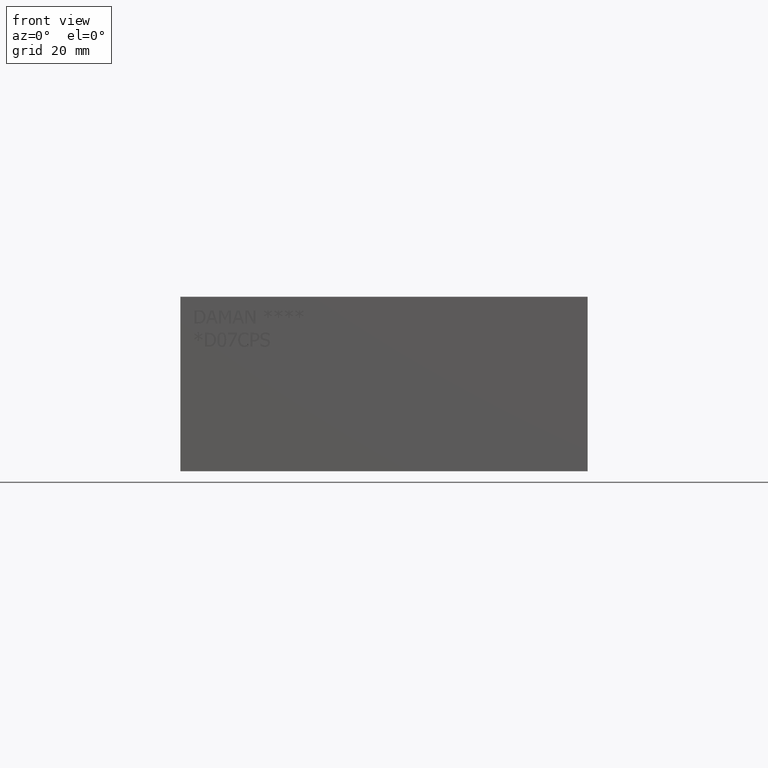
[diagram: clean part render]
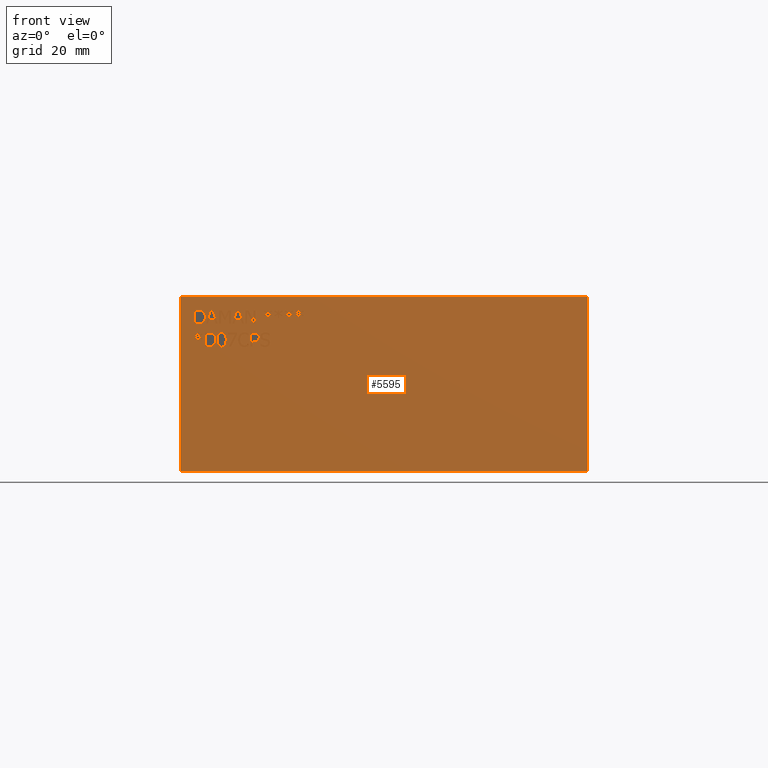
[diagram: same view with one face highlighted and labeled with its STEP entity id]
A machine part, front view. The second image highlights one B-rep face of the part: STEP entity #5595.
In plain terms, the highlighted planar face has unit normal (0, -1, 0).
Its self-contained STEP definition (entity closure, byte-faithful):
#97=FACE_BOUND('',#756,.T.);
#98=FACE_BOUND('',#757,.T.);
#99=FACE_BOUND('',#758,.T.);
#100=FACE_BOUND('',#759,.T.);
#101=FACE_BOUND('',#760,.T.);
#102=FACE_BOUND('',#761,.T.);
#103=FACE_BOUND('',#762,.T.);
#104=FACE_BOUND('',#763,.T.);
#105=FACE_BOUND('',#764,.T.);
#106=FACE_BOUND('',#765,.T.);
#107=FACE_BOUND('',#766,.T.);
#108=FACE_BOUND('',#767,.T.);
#109=FACE_BOUND('',#768,.T.);
#110=FACE_BOUND('',#769,.T.);
#111=FACE_BOUND('',#770,.T.);
#112=FACE_BOUND('',#771,.T.);
#457=FACE_OUTER_BOUND('',#755,.T.);
#755=EDGE_LOOP('',(#4723,#4724,#4725,#4726));
#756=EDGE_LOOP('',(#4727,#4728,#4729,#4730,#4731,#4732,#4733,#4734,#4735,
#4736,#4737,#4738,#4739,#4740,#4741,#4742,#4743,#4744,#4745,#4746));
#757=EDGE_LOOP('',(#4747,#4748,#4749,#4750,#4751,#4752,#4753,#4754,#4755));
#758=EDGE_LOOP('',(#4756,#4757,#4758,#4759,#4760,#4761,#4762,#4763,#4764,
#4765,#4766,#4767,#4768,#4769,#4770,#4771,#4772,#4773));
#759=EDGE_LOOP('',(#4774,#4775,#4776,#4777,#4778,#4779,#4780));
#760=EDGE_LOOP('',(#4781,#4782,#4783,#4784,#4785,#4786,#4787,#4788,#4789,
#4790,#4791,#4792,#4793,#4794,#4795,#4796,#4797,#4798));
#761=EDGE_LOOP('',(#4799,#4800,#4801,#4802));
#762=EDGE_LOOP('',(#4803,#4804,#4805,#4806,#4807,#4808,#4809,#4810,#4811,
#4812,#4813,#4814,#4815,#4816,#4817,#4818,#4819,#4820));
#763=EDGE_LOOP('',(#4821,#4822,#4823,#4824,#4825,#4826,#4827));
#764=EDGE_LOOP('',(#4828,#4829,#4830,#4831,#4832,#4833,#4834,#4835,#4836,
#4837,#4838,#4839,#4840));
#765=EDGE_LOOP('',(#4841,#4842,#4843,#4844,#4845,#4846,#4847,#4848,#4849,
#4850,#4851,#4852,#4853,#4854,#4855,#4856,#4857,#4858));
#766=EDGE_LOOP('',(#4859,#4860,#4861,#4862,#4863,#4864,#4865,#4866));
#767=EDGE_LOOP('',(#4867,#4868,#4869,#4870,#4871,#4872,#4873,#4874,#4875,
#4876,#4877,#4878,#4879,#4880,#4881,#4882,#4883,#4884));
#768=EDGE_LOOP('',(#4885,#4886,#4887,#4888,#4889,#4890,#4891));
#769=EDGE_LOOP('',(#4892,#4893,#4894,#4895,#4896,#4897,#4898,#4899,#4900,
#4901));
#770=EDGE_LOOP('',(#4902,#4903,#4904,#4905,#4906,#4907,#4908,#4909));
#771=EDGE_LOOP('',(#4910,#4911,#4912,#4913,#4914,#4915,#4916,#4917,#4918,
#4919,#4920,#4921,#4922,#4923,#4924,#4925,#4926,#4927,#4928,#4929));
#837=LINE('',#7261,#1447);
#839=LINE('',#7265,#1449);
#855=LINE('',#7465,#1465);
#857=LINE('',#7469,#1467);
#859=LINE('',#7486,#1469);
#863=LINE('',#7494,#1473);
#866=LINE('',#7500,#1476);
#869=LINE('',#7506,#1479);
#876=LINE('',#7521,#1486);
#879=LINE('',#7527,#1489);
#882=LINE('',#7533,#1492);
#885=LINE('',#7538,#1495);
#902=LINE('',#7574,#1512);
#905=LINE('',#7579,#1515);
#907=LINE('',#7583,#1517);
#909=LINE('',#7587,#1519);
#911=LINE('',#7591,#1521);
#913=LINE('',#7595,#1523);
#915=LINE('',#7599,#1525);
#917=LINE('',#7603,#1527);
#919=LINE('',#7607,#1529);
#921=LINE('',#7610,#1531);
#925=LINE('',#7659,#1535);
#940=LINE('',#7730,#1550);
#943=LINE('',#7735,#1553);
#966=LINE('',#7863,#1576);
#969=LINE('',#7868,#1579);
#971=LINE('',#7872,#1581);
#973=LINE('',#7876,#1583);
#975=LINE('',#7880,#1585);
#977=LINE('',#7884,#1587);
#979=LINE('',#7888,#1589);
#981=LINE('',#7892,#1591);
#983=LINE('',#7896,#1593);
#985=LINE('',#7900,#1595);
#987=LINE('',#7904,#1597);
#989=LINE('',#7908,#1599);
#991=LINE('',#7912,#1601);
#993=LINE('',#7916,#1603);
#995=LINE('',#7920,#1605);
#997=LINE('',#7924,#1607);
#999=LINE('',#7928,#1609);
#1001=LINE('',#7931,#1611);
#1002=LINE('',#7935,#1612);
#1006=LINE('',#7943,#1616);
#1009=LINE('',#7949,#1619);
#1012=LINE('',#7955,#1622);
#1019=LINE('',#7970,#1629);
#1022=LINE('',#7976,#1632);
#1025=LINE('',#7982,#1635);
#1028=LINE('',#7987,#1638);
#1053=LINE('',#8039,#1663);
#1056=LINE('',#8044,#1666);
#1058=LINE('',#8048,#1668);
#1060=LINE('',#8052,#1670);
#1062=LINE('',#8056,#1672);
#1064=LINE('',#8060,#1674);
#1066=LINE('',#8064,#1676);
#1068=LINE('',#8068,#1678);
#1070=LINE('',#8072,#1680);
#1072=LINE('',#8076,#1682);
#1074=LINE('',#8080,#1684);
#1076=LINE('',#8084,#1686);
#1078=LINE('',#8088,#1688);
#1080=LINE('',#8092,#1690);
#1082=LINE('',#8096,#1692);
#1084=LINE('',#8100,#1694);
#1086=LINE('',#8104,#1696);
#1088=LINE('',#8107,#1698);
#1089=LINE('',#8111,#1699);
#1093=LINE('',#8119,#1703);
#1096=LINE('',#8125,#1706);
#1099=LINE('',#8131,#1709);
#1102=LINE('',#8137,#1712);
#1105=LINE('',#8143,#1715);
#1108=LINE('',#8149,#1718);
#1111=LINE('',#8155,#1721);
#1114=LINE('',#8161,#1724);
#1117=LINE('',#8167,#1727);
#1120=LINE('',#8173,#1730);
#1123=LINE('',#8179,#1733);
#1126=LINE('',#8184,#1736);
#1139=LINE('',#8325,#1749);
#1142=LINE('',#8330,#1752);
#1151=LINE('',#8372,#1761);
#1154=LINE('',#8403,#1764);
#1158=LINE('',#8411,#1768);
#1161=LINE('',#8417,#1771);
#1164=LINE('',#8423,#1774);
#1167=LINE('',#8429,#1777);
#1170=LINE('',#8435,#1780);
#1173=LINE('',#8441,#1783);
#1176=LINE('',#8447,#1786);
#1179=LINE('',#8453,#1789);
#1182=LINE('',#8459,#1792);
#1185=LINE('',#8465,#1795);
#1188=LINE('',#8471,#1798);
#1191=LINE('',#8477,#1801);
#1194=LINE('',#8483,#1804);
#1197=LINE('',#8489,#1807);
#1200=LINE('',#8495,#1810);
#1203=LINE('',#8501,#1813);
#1206=LINE('',#8506,#1816);
#1220=LINE('',#8777,#1830);
#1224=LINE('',#8785,#1834);
#1227=LINE('',#8791,#1837);
#1230=LINE('',#8797,#1840);
#1233=LINE('',#8803,#1843);
#1236=LINE('',#8809,#1846);
#1239=LINE('',#8815,#1849);
#1242=LINE('',#8821,#1852);
#1245=LINE('',#8827,#1855);
#1248=LINE('',#8833,#1858);
#1251=LINE('',#8839,#1861);
#1254=LINE('',#8845,#1864);
#1257=LINE('',#8851,#1867);
#1260=LINE('',#8857,#1870);
#1263=LINE('',#8863,#1873);
#1266=LINE('',#8869,#1876);
#1269=LINE('',#8875,#1879);
#1272=LINE('',#8880,#1882);
#1281=LINE('',#8901,#1891);
#1284=LINE('',#8906,#1894);
#1286=LINE('',#8910,#1896);
#1288=LINE('',#8914,#1898);
#1290=LINE('',#8918,#1900);
#1292=LINE('',#8922,#1902);
#1294=LINE('',#8925,#1904);
#1295=LINE('',#8929,#1905);
#1299=LINE('',#8937,#1909);
#1302=LINE('',#8943,#1912);
#1305=LINE('',#8949,#1915);
#1308=LINE('',#8955,#1918);
#1311=LINE('',#8961,#1921);
#1314=LINE('',#8967,#1924);
#1317=LINE('',#8973,#1927);
#1320=LINE('',#8979,#1930);
#1323=LINE('',#8985,#1933);
#1326=LINE('',#8991,#1936);
#1329=LINE('',#8997,#1939);
#1332=LINE('',#9003,#1942);
#1335=LINE('',#9009,#1945);
#1338=LINE('',#9015,#1948);
#1341=LINE('',#9021,#1951);
#1344=LINE('',#9027,#1954);
#1347=LINE('',#9032,#1957);
#1362=LINE('',#9177,#1972);
#1365=LINE('',#9182,#1975);
#1367=LINE('',#9186,#1977);
#1376=LINE('',#9228,#1986);
#1378=LINE('',#9232,#1988);
#1388=LINE('',#9397,#1998);
#1391=LINE('',#9403,#2001);
#1398=LINE('',#9496,#2008);
#1401=LINE('',#9502,#2011);
#1409=LINE('',#9639,#2019);
#1410=LINE('',#9641,#2020);
#1411=LINE('',#9643,#2021);
#1412=LINE('',#9644,#2022);
#1447=VECTOR('',#5945,0.393700787401575);
#1449=VECTOR('',#5949,0.393700787401575);
#1465=VECTOR('',#5967,0.393700787401575);
#1467=VECTOR('',#5971,0.393700787401575);
#1469=VECTOR('',#5975,0.393700787401575);
#1473=VECTOR('',#5981,0.393700787401575);
#1476=VECTOR('',#5986,0.393700787401575);
#1479=VECTOR('',#5991,0.393700787401575);
#1486=VECTOR('',#6002,0.393700787401575);
#1489=VECTOR('',#6007,0.393700787401575);
#1492=VECTOR('',#6012,0.393700787401575);
#1495=VECTOR('',#6017,0.393700787401575);
#1512=VECTOR('',#6044,0.393700787401575);
#1515=VECTOR('',#6049,0.393700787401575);
#1517=VECTOR('',#6053,0.393700787401575);
#1519=VECTOR('',#6057,0.393700787401575);
#1521=VECTOR('',#6061,0.393700787401575);
#1523=VECTOR('',#6065,0.393700787401575);
#1525=VECTOR('',#6069,0.393700787401575);
#1527=VECTOR('',#6073,0.393700787401575);
#1529=VECTOR('',#6077,0.393700787401575);
#1531=VECTOR('',#6081,0.393700787401575);
#1535=VECTOR('',#6087,0.393700787401575);
#1550=VECTOR('',#6110,0.393700787401575);
#1553=VECTOR('',#6115,0.393700787401575);
#1576=VECTOR('',#6144,0.393700787401575);
#1579=VECTOR('',#6149,0.393700787401575);
#1581=VECTOR('',#6153,0.393700787401575);
#1583=VECTOR('',#6157,0.393700787401575);
#1585=VECTOR('',#6161,0.393700787401575);
#1587=VECTOR('',#6165,0.393700787401575);
#1589=VECTOR('',#6169,0.393700787401575);
#1591=VECTOR('',#6173,0.393700787401575);
#1593=VECTOR('',#6177,0.393700787401575);
#1595=VECTOR('',#6181,0.393700787401575);
#1597=VECTOR('',#6185,0.393700787401575);
#1599=VECTOR('',#6189,0.393700787401575);
#1601=VECTOR('',#6193,0.393700787401575);
#1603=VECTOR('',#6197,0.393700787401575);
#1605=VECTOR('',#6201,0.393700787401575);
#1607=VECTOR('',#6205,0.393700787401575);
#1609=VECTOR('',#6209,0.393700787401575);
#1611=VECTOR('',#6213,0.393700787401575);
#1612=VECTOR('',#6216,0.393700787401575);
#1616=VECTOR('',#6222,0.393700787401575);
#1619=VECTOR('',#6227,0.393700787401575);
#1622=VECTOR('',#6232,0.393700787401575);
#1629=VECTOR('',#6243,0.393700787401575);
#1632=VECTOR('',#6248,0.393700787401575);
#1635=VECTOR('',#6253,0.393700787401575);
#1638=VECTOR('',#6258,0.393700787401575);
#1663=VECTOR('',#6293,0.393700787401575);
#1666=VECTOR('',#6298,0.393700787401575);
#1668=VECTOR('',#6302,0.393700787401575);
#1670=VECTOR('',#6306,0.393700787401575);
#1672=VECTOR('',#6310,0.393700787401575);
#1674=VECTOR('',#6314,0.393700787401575);
#1676=VECTOR('',#6318,0.393700787401575);
#1678=VECTOR('',#6322,0.393700787401575);
#1680=VECTOR('',#6326,0.393700787401575);
#1682=VECTOR('',#6330,0.393700787401575);
#1684=VECTOR('',#6334,0.393700787401575);
#1686=VECTOR('',#6338,0.393700787401575);
#1688=VECTOR('',#6342,0.393700787401575);
#1690=VECTOR('',#6346,0.393700787401575);
#1692=VECTOR('',#6350,0.393700787401575);
#1694=VECTOR('',#6354,0.393700787401575);
#1696=VECTOR('',#6358,0.393700787401575);
#1698=VECTOR('',#6362,0.393700787401575);
#1699=VECTOR('',#6365,0.393700787401575);
#1703=VECTOR('',#6371,0.393700787401575);
#1706=VECTOR('',#6376,0.393700787401575);
#1709=VECTOR('',#6381,0.393700787401575);
#1712=VECTOR('',#6386,0.393700787401575);
#1715=VECTOR('',#6391,0.393700787401575);
#1718=VECTOR('',#6396,0.393700787401575);
#1721=VECTOR('',#6401,0.393700787401575);
#1724=VECTOR('',#6406,0.393700787401575);
#1727=VECTOR('',#6411,0.393700787401575);
#1730=VECTOR('',#6416,0.393700787401575);
#1733=VECTOR('',#6421,0.393700787401575);
#1736=VECTOR('',#6426,0.393700787401575);
#1749=VECTOR('',#6445,0.393700787401575);
#1752=VECTOR('',#6450,0.393700787401575);
#1761=VECTOR('',#6467,0.393700787401575);
#1764=VECTOR('',#6472,0.393700787401575);
#1768=VECTOR('',#6478,0.393700787401575);
#1771=VECTOR('',#6483,0.393700787401575);
#1774=VECTOR('',#6488,0.393700787401575);
#1777=VECTOR('',#6493,0.393700787401575);
#1780=VECTOR('',#6498,0.393700787401575);
#1783=VECTOR('',#6503,0.393700787401575);
#1786=VECTOR('',#6508,0.393700787401575);
#1789=VECTOR('',#6513,0.393700787401575);
#1792=VECTOR('',#6518,0.393700787401575);
#1795=VECTOR('',#6523,0.393700787401575);
#1798=VECTOR('',#6528,0.393700787401575);
#1801=VECTOR('',#6533,0.393700787401575);
#1804=VECTOR('',#6538,0.393700787401575);
#1807=VECTOR('',#6543,0.393700787401575);
#1810=VECTOR('',#6548,0.393700787401575);
#1813=VECTOR('',#6553,0.393700787401575);
#1816=VECTOR('',#6558,0.393700787401575);
#1830=VECTOR('',#6578,0.393700787401575);
#1834=VECTOR('',#6584,0.393700787401575);
#1837=VECTOR('',#6589,0.393700787401575);
#1840=VECTOR('',#6594,0.393700787401575);
#1843=VECTOR('',#6599,0.393700787401575);
#1846=VECTOR('',#6604,0.393700787401575);
#1849=VECTOR('',#6609,0.393700787401575);
#1852=VECTOR('',#6614,0.393700787401575);
#1855=VECTOR('',#6619,0.393700787401575);
#1858=VECTOR('',#6624,0.393700787401575);
#1861=VECTOR('',#6629,0.393700787401575);
#1864=VECTOR('',#6634,0.393700787401575);
#1867=VECTOR('',#6639,0.393700787401575);
#1870=VECTOR('',#6644,0.393700787401575);
#1873=VECTOR('',#6649,0.393700787401575);
#1876=VECTOR('',#6654,0.393700787401575);
#1879=VECTOR('',#6659,0.393700787401575);
#1882=VECTOR('',#6664,0.393700787401575);
#1891=VECTOR('',#6679,0.393700787401575);
#1894=VECTOR('',#6684,0.393700787401575);
#1896=VECTOR('',#6688,0.393700787401575);
#1898=VECTOR('',#6692,0.393700787401575);
#1900=VECTOR('',#6696,0.393700787401575);
#1902=VECTOR('',#6700,0.393700787401575);
#1904=VECTOR('',#6704,0.393700787401575);
#1905=VECTOR('',#6707,0.393700787401575);
#1909=VECTOR('',#6713,0.393700787401575);
#1912=VECTOR('',#6718,0.393700787401575);
#1915=VECTOR('',#6723,0.393700787401575);
#1918=VECTOR('',#6728,0.393700787401575);
#1921=VECTOR('',#6733,0.393700787401575);
#1924=VECTOR('',#6738,0.393700787401575);
#1927=VECTOR('',#6743,0.393700787401575);
#1930=VECTOR('',#6748,0.393700787401575);
#1933=VECTOR('',#6753,0.393700787401575);
#1936=VECTOR('',#6758,0.393700787401575);
#1939=VECTOR('',#6763,0.393700787401575);
#1942=VECTOR('',#6768,0.393700787401575);
#1945=VECTOR('',#6773,0.393700787401575);
#1948=VECTOR('',#6778,0.393700787401575);
#1951=VECTOR('',#6783,0.393700787401575);
#1954=VECTOR('',#6788,0.393700787401575);
#1957=VECTOR('',#6793,0.393700787401575);
#1972=VECTOR('',#6814,0.393700787401575);
#1975=VECTOR('',#6819,0.393700787401575);
#1977=VECTOR('',#6823,0.393700787401575);
#1986=VECTOR('',#6840,0.393700787401575);
#1988=VECTOR('',#6844,0.393700787401575);
#1998=VECTOR('',#6856,0.393700787401575);
#2001=VECTOR('',#6861,0.393700787401575);
#2008=VECTOR('',#6870,0.393700787401575);
#2011=VECTOR('',#6875,0.393700787401575);
#2019=VECTOR('',#6887,3.5);
#2020=VECTOR('',#6888,1.5);
#2021=VECTOR('',#6889,3.5);
#2022=VECTOR('',#6890,1.5);
#2067=B_SPLINE_CURVE_WITH_KNOTS('',2,(#7253,#7254,#7255,#7256),
 .UNSPECIFIED.,.F.,.F.,(3,1,3),(0.,1.,2.),.UNSPECIFIED.);
#2068=B_SPLINE_CURVE_WITH_KNOTS('',2,(#7276,#7277,#7278,#7279),
 .UNSPECIFIED.,.F.,.F.,(3,1,3),(0.,1.,2.),.UNSPECIFIED.);
#2069=B_SPLINE_CURVE_WITH_KNOTS('',2,(#7290,#7291,#7292,#7293),
 .UNSPECIFIED.,.F.,.F.,(3,1,3),(0.,1.,2.),.UNSPECIFIED.);
#2070=B_SPLINE_CURVE_WITH_KNOTS('',2,(#7304,#7305,#7306,#7307),
 .UNSPECIFIED.,.F.,.F.,(3,1,3),(0.,1.,2.),.UNSPECIFIED.);
#2071=B_SPLINE_CURVE_WITH_KNOTS('',2,(#7318,#7319,#7320,#7321),
 .UNSPECIFIED.,.F.,.F.,(3,1,3),(0.,1.,2.),.UNSPECIFIED.);
#2072=B_SPLINE_CURVE_WITH_KNOTS('',2,(#7332,#7333,#7334,#7335),
 .UNSPECIFIED.,.F.,.F.,(3,1,3),(0.,1.,2.),.UNSPECIFIED.);
#2073=B_SPLINE_CURVE_WITH_KNOTS('',2,(#7346,#7347,#7348,#7349),
 .UNSPECIFIED.,.F.,.F.,(3,1,3),(0.,1.,2.),.UNSPECIFIED.);
#2074=B_SPLINE_CURVE_WITH_KNOTS('',2,(#7360,#7361,#7362,#7363),
 .UNSPECIFIED.,.F.,.F.,(3,1,3),(0.,1.,2.),.UNSPECIFIED.);
#2075=B_SPLINE_CURVE_WITH_KNOTS('',2,(#7374,#7375,#7376,#7377),
 .UNSPECIFIED.,.F.,.F.,(3,1,3),(0.,1.,2.),.UNSPECIFIED.);
#2076=B_SPLINE_CURVE_WITH_KNOTS('',2,(#7388,#7389,#7390,#7391),
 .UNSPECIFIED.,.F.,.F.,(3,1,3),(0.,1.,2.),.UNSPECIFIED.);
#2077=B_SPLINE_CURVE_WITH_KNOTS('',2,(#7402,#7403,#7404,#7405),
 .UNSPECIFIED.,.F.,.F.,(3,1,3),(0.,1.,2.),.UNSPECIFIED.);
#2078=B_SPLINE_CURVE_WITH_KNOTS('',2,(#7416,#7417,#7418,#7419),
 .UNSPECIFIED.,.F.,.F.,(3,1,3),(0.,1.,2.),.UNSPECIFIED.);
#2079=B_SPLINE_CURVE_WITH_KNOTS('',2,(#7430,#7431,#7432,#7433),
 .UNSPECIFIED.,.F.,.F.,(3,1,3),(0.,1.,2.),.UNSPECIFIED.);
#2080=B_SPLINE_CURVE_WITH_KNOTS('',2,(#7444,#7445,#7446,#7447),
 .UNSPECIFIED.,.F.,.F.,(3,1,3),(0.,1.,2.),.UNSPECIFIED.);
#2081=B_SPLINE_CURVE_WITH_KNOTS('',2,(#7458,#7459,#7460,#7461),
 .UNSPECIFIED.,.F.,.F.,(3,1,3),(0.,1.,2.),.UNSPECIFIED.);
#2082=B_SPLINE_CURVE_WITH_KNOTS('',2,(#7479,#7480,#7481,#7482),
 .UNSPECIFIED.,.F.,.F.,(3,1,3),(0.,1.,2.),.UNSPECIFIED.);
#2083=B_SPLINE_CURVE_WITH_KNOTS('',2,(#7621,#7622,#7623,#7624),
 .UNSPECIFIED.,.F.,.F.,(3,1,3),(0.,1.,2.),.UNSPECIFIED.);
#2085=B_SPLINE_CURVE_WITH_KNOTS('',2,(#7645,#7646,#7647,#7648),
 .UNSPECIFIED.,.F.,.F.,(3,1,3),(0.,1.,2.),.UNSPECIFIED.);
#2087=B_SPLINE_CURVE_WITH_KNOTS('',2,(#7693,#7694,#7695,#7696),
 .UNSPECIFIED.,.F.,.F.,(3,1,3),(0.,1.,2.),.UNSPECIFIED.);
#2089=B_SPLINE_CURVE_WITH_KNOTS('',2,(#7715,#7716,#7717,#7718),
 .UNSPECIFIED.,.F.,.F.,(3,1,3),(0.,1.,2.),.UNSPECIFIED.);
#2111=B_SPLINE_CURVE_WITH_KNOTS('',2,(#8341,#8342,#8343,#8344),
 .UNSPECIFIED.,.F.,.F.,(3,1,3),(0.,1.,2.),.UNSPECIFIED.);
#2112=B_SPLINE_CURVE_WITH_KNOTS('',2,(#8355,#8356,#8357,#8358),
 .UNSPECIFIED.,.F.,.F.,(3,1,3),(0.,1.,2.),.UNSPECIFIED.);
#2113=B_SPLINE_CURVE_WITH_KNOTS('',2,(#8383,#8384,#8385,#8386),
 .UNSPECIFIED.,.F.,.F.,(3,1,3),(0.,1.,2.),.UNSPECIFIED.);
#2114=B_SPLINE_CURVE_WITH_KNOTS('',2,(#8396,#8397,#8398,#8399),
 .UNSPECIFIED.,.F.,.F.,(3,1,3),(0.,1.,2.),.UNSPECIFIED.);
#2131=B_SPLINE_CURVE_WITH_KNOTS('',2,(#8674,#8675,#8676,#8677),
 .UNSPECIFIED.,.F.,.F.,(3,1,3),(0.,1.,2.),.UNSPECIFIED.);
#2132=B_SPLINE_CURVE_WITH_KNOTS('',2,(#8689,#8690,#8691,#8692),
 .UNSPECIFIED.,.F.,.F.,(3,1,3),(0.,1.,2.),.UNSPECIFIED.);
#2137=B_SPLINE_CURVE_WITH_KNOTS('',2,(#8757,#8758,#8759,#8760),
 .UNSPECIFIED.,.F.,.F.,(3,1,3),(0.,1.,2.),.UNSPECIFIED.);
#2138=B_SPLINE_CURVE_WITH_KNOTS('',2,(#8770,#8771,#8772,#8773),
 .UNSPECIFIED.,.F.,.F.,(3,1,3),(0.,1.,2.),.UNSPECIFIED.);
#2151=B_SPLINE_CURVE_WITH_KNOTS('',2,(#9197,#9198,#9199,#9200),
 .UNSPECIFIED.,.F.,.F.,(3,1,3),(0.,1.,2.),.UNSPECIFIED.);
#2152=B_SPLINE_CURVE_WITH_KNOTS('',2,(#9211,#9212,#9213,#9214),
 .UNSPECIFIED.,.F.,.F.,(3,1,3),(0.,1.,2.),.UNSPECIFIED.);
#2153=B_SPLINE_CURVE_WITH_KNOTS('',2,(#9243,#9244,#9245,#9246),
 .UNSPECIFIED.,.F.,.F.,(3,1,3),(0.,1.,2.),.UNSPECIFIED.);
#2154=B_SPLINE_CURVE_WITH_KNOTS('',2,(#9256,#9257,#9258,#9259),
 .UNSPECIFIED.,.F.,.F.,(3,1,3),(0.,1.,2.),.UNSPECIFIED.);
#2155=B_SPLINE_CURVE_WITH_KNOTS('',2,(#9270,#9271,#9272,#9273),
 .UNSPECIFIED.,.F.,.F.,(3,1,3),(0.,1.,2.),.UNSPECIFIED.);
#2157=B_SPLINE_CURVE_WITH_KNOTS('',2,(#9294,#9295,#9296,#9297),
 .UNSPECIFIED.,.F.,.F.,(3,1,3),(0.,1.,2.),.UNSPECIFIED.);
#2159=B_SPLINE_CURVE_WITH_KNOTS('',2,(#9316,#9317,#9318,#9319),
 .UNSPECIFIED.,.F.,.F.,(3,1,3),(0.,1.,2.),.UNSPECIFIED.);
#2161=B_SPLINE_CURVE_WITH_KNOTS('',2,(#9338,#9339,#9340,#9341),
 .UNSPECIFIED.,.F.,.F.,(3,1,3),(0.,1.,2.),.UNSPECIFIED.);
#2163=B_SPLINE_CURVE_WITH_KNOTS('',2,(#9360,#9361,#9362,#9363),
 .UNSPECIFIED.,.F.,.F.,(3,1,3),(0.,1.,2.),.UNSPECIFIED.);
#2165=B_SPLINE_CURVE_WITH_KNOTS('',2,(#9382,#9383,#9384,#9385),
 .UNSPECIFIED.,.F.,.F.,(3,1,3),(0.,1.,2.),.UNSPECIFIED.);
#2167=B_SPLINE_CURVE_WITH_KNOTS('',2,(#9416,#9417,#9418,#9419),
 .UNSPECIFIED.,.F.,.F.,(3,1,3),(0.,1.,2.),.UNSPECIFIED.);
#2169=B_SPLINE_CURVE_WITH_KNOTS('',2,(#9437,#9438,#9439,#9440),
 .UNSPECIFIED.,.F.,.F.,(3,1,3),(0.,1.,2.),.UNSPECIFIED.);
#2171=B_SPLINE_CURVE_WITH_KNOTS('',2,(#9459,#9460,#9461,#9462),
 .UNSPECIFIED.,.F.,.F.,(3,1,3),(0.,1.,2.),.UNSPECIFIED.);
#2173=B_SPLINE_CURVE_WITH_KNOTS('',2,(#9481,#9482,#9483,#9484),
 .UNSPECIFIED.,.F.,.F.,(3,1,3),(0.,1.,2.),.UNSPECIFIED.);
#2175=B_SPLINE_CURVE_WITH_KNOTS('',2,(#9515,#9516,#9517,#9518),
 .UNSPECIFIED.,.F.,.F.,(3,1,3),(0.,1.,2.),.UNSPECIFIED.);
#2177=B_SPLINE_CURVE_WITH_KNOTS('',2,(#9537,#9538,#9539,#9540),
 .UNSPECIFIED.,.F.,.F.,(3,1,3),(0.,1.,2.),.UNSPECIFIED.);
#2179=B_SPLINE_CURVE_WITH_KNOTS('',2,(#9559,#9560,#9561,#9562),
 .UNSPECIFIED.,.F.,.F.,(3,1,3),(0.,1.,2.),.UNSPECIFIED.);
#2181=B_SPLINE_CURVE_WITH_KNOTS('',2,(#9581,#9582,#9583,#9584),
 .UNSPECIFIED.,.F.,.F.,(3,1,3),(0.,1.,2.),.UNSPECIFIED.);
#2183=B_SPLINE_CURVE_WITH_KNOTS('',2,(#9603,#9604,#9605,#9606),
 .UNSPECIFIED.,.F.,.F.,(3,1,3),(0.,1.,2.),.UNSPECIFIED.);
#2185=B_SPLINE_CURVE_WITH_KNOTS('',2,(#9624,#9625,#9626,#9627),
 .UNSPECIFIED.,.F.,.F.,(3,1,3),(0.,1.,2.),.UNSPECIFIED.);
#2207=VERTEX_POINT('',#7251);
#2208=VERTEX_POINT('',#7252);
#2209=VERTEX_POINT('',#7260);
#2210=VERTEX_POINT('',#7264);
#2211=VERTEX_POINT('',#7275);
#2212=VERTEX_POINT('',#7289);
#2213=VERTEX_POINT('',#7303);
#2214=VERTEX_POINT('',#7317);
#2215=VERTEX_POINT('',#7331);
#2216=VERTEX_POINT('',#7345);
#2217=VERTEX_POINT('',#7359);
#2218=VERTEX_POINT('',#7373);
#2219=VERTEX_POINT('',#7387);
#2220=VERTEX_POINT('',#7401);
#2221=VERTEX_POINT('',#7415);
#2222=VERTEX_POINT('',#7429);
#2223=VERTEX_POINT('',#7443);
#2224=VERTEX_POINT('',#7457);
#2225=VERTEX_POINT('',#7464);
#2226=VERTEX_POINT('',#7468);
#2227=VERTEX_POINT('',#7484);
#2228=VERTEX_POINT('',#7485);
#2231=VERTEX_POINT('',#7493);
#2233=VERTEX_POINT('',#7499);
#2235=VERTEX_POINT('',#7505);
#2241=VERTEX_POINT('',#7520);
#2243=VERTEX_POINT('',#7526);
#2245=VERTEX_POINT('',#7532);
#2259=VERTEX_POINT('',#7572);
#2260=VERTEX_POINT('',#7573);
#2261=VERTEX_POINT('',#7578);
#2262=VERTEX_POINT('',#7582);
#2263=VERTEX_POINT('',#7586);
#2264=VERTEX_POINT('',#7590);
#2265=VERTEX_POINT('',#7594);
#2266=VERTEX_POINT('',#7598);
#2267=VERTEX_POINT('',#7602);
#2268=VERTEX_POINT('',#7606);
#2269=VERTEX_POINT('',#7619);
#2270=VERTEX_POINT('',#7620);
#2273=VERTEX_POINT('',#7644);
#2275=VERTEX_POINT('',#7658);
#2285=VERTEX_POINT('',#7692);
#2287=VERTEX_POINT('',#7714);
#2289=VERTEX_POINT('',#7729);
#2315=VERTEX_POINT('',#7861);
#2316=VERTEX_POINT('',#7862);
#2317=VERTEX_POINT('',#7867);
#2318=VERTEX_POINT('',#7871);
#2319=VERTEX_POINT('',#7875);
#2320=VERTEX_POINT('',#7879);
#2321=VERTEX_POINT('',#7883);
#2322=VERTEX_POINT('',#7887);
#2323=VERTEX_POINT('',#7891);
#2324=VERTEX_POINT('',#7895);
#2325=VERTEX_POINT('',#7899);
#2326=VERTEX_POINT('',#7903);
#2327=VERTEX_POINT('',#7907);
#2328=VERTEX_POINT('',#7911);
#2329=VERTEX_POINT('',#7915);
#2330=VERTEX_POINT('',#7919);
#2331=VERTEX_POINT('',#7923);
#2332=VERTEX_POINT('',#7927);
#2333=VERTEX_POINT('',#7933);
#2334=VERTEX_POINT('',#7934);
#2337=VERTEX_POINT('',#7942);
#2339=VERTEX_POINT('',#7948);
#2341=VERTEX_POINT('',#7954);
#2347=VERTEX_POINT('',#7969);
#2349=VERTEX_POINT('',#7975);
#2351=VERTEX_POINT('',#7981);
#2373=VERTEX_POINT('',#8037);
#2374=VERTEX_POINT('',#8038);
#2375=VERTEX_POINT('',#8043);
#2376=VERTEX_POINT('',#8047);
#2377=VERTEX_POINT('',#8051);
#2378=VERTEX_POINT('',#8055);
#2379=VERTEX_POINT('',#8059);
#2380=VERTEX_POINT('',#8063);
#2381=VERTEX_POINT('',#8067);
#2382=VERTEX_POINT('',#8071);
#2383=VERTEX_POINT('',#8075);
#2384=VERTEX_POINT('',#8079);
#2385=VERTEX_POINT('',#8083);
#2386=VERTEX_POINT('',#8087);
#2387=VERTEX_POINT('',#8091);
#2388=VERTEX_POINT('',#8095);
#2389=VERTEX_POINT('',#8099);
#2390=VERTEX_POINT('',#8103);
#2391=VERTEX_POINT('',#8109);
#2392=VERTEX_POINT('',#8110);
#2395=VERTEX_POINT('',#8118);
#2397=VERTEX_POINT('',#8124);
#2399=VERTEX_POINT('',#8130);
#2401=VERTEX_POINT('',#8136);
#2403=VERTEX_POINT('',#8142);
#2405=VERTEX_POINT('',#8148);
#2407=VERTEX_POINT('',#8154);
#2409=VERTEX_POINT('',#8160);
#2411=VERTEX_POINT('',#8166);
#2413=VERTEX_POINT('',#8172);
#2415=VERTEX_POINT('',#8178);
#2436=VERTEX_POINT('',#8323);
#2437=VERTEX_POINT('',#8324);
#2438=VERTEX_POINT('',#8329);
#2439=VERTEX_POINT('',#8340);
#2440=VERTEX_POINT('',#8354);
#2443=VERTEX_POINT('',#8371);
#2444=VERTEX_POINT('',#8382);
#2445=VERTEX_POINT('',#8401);
#2446=VERTEX_POINT('',#8402);
#2449=VERTEX_POINT('',#8410);
#2451=VERTEX_POINT('',#8416);
#2453=VERTEX_POINT('',#8422);
#2455=VERTEX_POINT('',#8428);
#2457=VERTEX_POINT('',#8434);
#2459=VERTEX_POINT('',#8440);
#2461=VERTEX_POINT('',#8446);
#2463=VERTEX_POINT('',#8452);
#2465=VERTEX_POINT('',#8458);
#2467=VERTEX_POINT('',#8464);
#2469=VERTEX_POINT('',#8470);
#2471=VERTEX_POINT('',#8476);
#2473=VERTEX_POINT('',#8482);
#2475=VERTEX_POINT('',#8488);
#2477=VERTEX_POINT('',#8494);
#2479=VERTEX_POINT('',#8500);
#2498=VERTEX_POINT('',#8672);
#2499=VERTEX_POINT('',#8673);
#2500=VERTEX_POINT('',#8688);
#2504=VERTEX_POINT('',#8756);
#2505=VERTEX_POINT('',#8775);
#2506=VERTEX_POINT('',#8776);
#2509=VERTEX_POINT('',#8784);
#2511=VERTEX_POINT('',#8790);
#2513=VERTEX_POINT('',#8796);
#2515=VERTEX_POINT('',#8802);
#2517=VERTEX_POINT('',#8808);
#2519=VERTEX_POINT('',#8814);
#2521=VERTEX_POINT('',#8820);
#2523=VERTEX_POINT('',#8826);
#2525=VERTEX_POINT('',#8832);
#2527=VERTEX_POINT('',#8838);
#2529=VERTEX_POINT('',#8844);
#2531=VERTEX_POINT('',#8850);
#2533=VERTEX_POINT('',#8856);
#2535=VERTEX_POINT('',#8862);
#2537=VERTEX_POINT('',#8868);
#2539=VERTEX_POINT('',#8874);
#2548=VERTEX_POINT('',#8899);
#2549=VERTEX_POINT('',#8900);
#2550=VERTEX_POINT('',#8905);
#2551=VERTEX_POINT('',#8909);
#2552=VERTEX_POINT('',#8913);
#2553=VERTEX_POINT('',#8917);
#2554=VERTEX_POINT('',#8921);
#2555=VERTEX_POINT('',#8927);
#2556=VERTEX_POINT('',#8928);
#2559=VERTEX_POINT('',#8936);
#2561=VERTEX_POINT('',#8942);
#2563=VERTEX_POINT('',#8948);
#2565=VERTEX_POINT('',#8954);
#2567=VERTEX_POINT('',#8960);
#2569=VERTEX_POINT('',#8966);
#2571=VERTEX_POINT('',#8972);
#2573=VERTEX_POINT('',#8978);
#2575=VERTEX_POINT('',#8984);
#2577=VERTEX_POINT('',#8990);
#2579=VERTEX_POINT('',#8996);
#2581=VERTEX_POINT('',#9002);
#2583=VERTEX_POINT('',#9008);
#2585=VERTEX_POINT('',#9014);
#2587=VERTEX_POINT('',#9020);
#2589=VERTEX_POINT('',#9026);
#2612=VERTEX_POINT('',#9175);
#2613=VERTEX_POINT('',#9176);
#2614=VERTEX_POINT('',#9181);
#2615=VERTEX_POINT('',#9185);
#2616=VERTEX_POINT('',#9196);
#2617=VERTEX_POINT('',#9210);
#2620=VERTEX_POINT('',#9227);
#2621=VERTEX_POINT('',#9231);
#2622=VERTEX_POINT('',#9242);
#2623=VERTEX_POINT('',#9268);
#2624=VERTEX_POINT('',#9269);
#2627=VERTEX_POINT('',#9293);
#2629=VERTEX_POINT('',#9315);
#2631=VERTEX_POINT('',#9337);
#2633=VERTEX_POINT('',#9359);
#2635=VERTEX_POINT('',#9381);
#2637=VERTEX_POINT('',#9396);
#2639=VERTEX_POINT('',#9402);
#2641=VERTEX_POINT('',#9415);
#2643=VERTEX_POINT('',#9436);
#2645=VERTEX_POINT('',#9458);
#2647=VERTEX_POINT('',#9480);
#2649=VERTEX_POINT('',#9495);
#2651=VERTEX_POINT('',#9501);
#2653=VERTEX_POINT('',#9514);
#2655=VERTEX_POINT('',#9536);
#2657=VERTEX_POINT('',#9558);
#2659=VERTEX_POINT('',#9580);
#2661=VERTEX_POINT('',#9602);
#2663=VERTEX_POINT('',#9637);
#2664=VERTEX_POINT('',#9638);
#2665=VERTEX_POINT('',#9640);
#2666=VERTEX_POINT('',#9642);
#2751=EDGE_CURVE('',#2207,#2208,#2067,.T.);
#2754=EDGE_CURVE('',#2208,#2209,#837,.T.);
#2756=EDGE_CURVE('',#2209,#2210,#839,.T.);
#2758=EDGE_CURVE('',#2210,#2211,#2068,.T.);
#2760=EDGE_CURVE('',#2211,#2212,#2069,.T.);
#2762=EDGE_CURVE('',#2212,#2213,#2070,.T.);
#2764=EDGE_CURVE('',#2213,#2214,#2071,.T.);
#2766=EDGE_CURVE('',#2214,#2215,#2072,.T.);
#2768=EDGE_CURVE('',#2215,#2216,#2073,.T.);
#2770=EDGE_CURVE('',#2216,#2217,#2074,.T.);
#2772=EDGE_CURVE('',#2218,#2207,#2075,.T.);
#2774=EDGE_CURVE('',#2219,#2218,#2076,.T.);
#2776=EDGE_CURVE('',#2220,#2219,#2077,.T.);
#2778=EDGE_CURVE('',#2221,#2220,#2078,.T.);
#2780=EDGE_CURVE('',#2222,#2221,#2079,.T.);
#2782=EDGE_CURVE('',#2223,#2222,#2080,.T.);
#2784=EDGE_CURVE('',#2224,#2223,#2081,.T.);
#2786=EDGE_CURVE('',#2225,#2224,#855,.T.);
#2788=EDGE_CURVE('',#2226,#2225,#857,.T.);
#2790=EDGE_CURVE('',#2217,#2226,#2082,.T.);
#2791=EDGE_CURVE('',#2227,#2228,#859,.T.);
#2795=EDGE_CURVE('',#2228,#2231,#863,.T.);
#2798=EDGE_CURVE('',#2231,#2233,#866,.T.);
#2801=EDGE_CURVE('',#2233,#2235,#869,.T.);
#2808=EDGE_CURVE('',#2241,#2227,#876,.T.);
#2811=EDGE_CURVE('',#2243,#2241,#879,.T.);
#2814=EDGE_CURVE('',#2245,#2243,#882,.T.);
#2817=EDGE_CURVE('',#2235,#2245,#885,.T.);
#2834=EDGE_CURVE('',#2259,#2260,#902,.T.);
#2837=EDGE_CURVE('',#2260,#2261,#905,.T.);
#2839=EDGE_CURVE('',#2261,#2262,#907,.T.);
#2841=EDGE_CURVE('',#2262,#2263,#909,.T.);
#2843=EDGE_CURVE('',#2263,#2264,#911,.T.);
#2845=EDGE_CURVE('',#2265,#2259,#913,.T.);
#2847=EDGE_CURVE('',#2266,#2265,#915,.T.);
#2849=EDGE_CURVE('',#2267,#2266,#917,.T.);
#2851=EDGE_CURVE('',#2268,#2267,#919,.T.);
#2853=EDGE_CURVE('',#2264,#2268,#921,.T.);
#2854=EDGE_CURVE('',#2269,#2270,#2083,.T.);
#2858=EDGE_CURVE('',#2270,#2273,#2085,.T.);
#2861=EDGE_CURVE('',#2273,#2275,#925,.T.);
#2874=EDGE_CURVE('',#2285,#2269,#2087,.T.);
#2877=EDGE_CURVE('',#2287,#2285,#2089,.T.);
#2880=EDGE_CURVE('',#2289,#2287,#940,.T.);
#2883=EDGE_CURVE('',#2275,#2289,#943,.T.);
#2914=EDGE_CURVE('',#2315,#2316,#966,.T.);
#2917=EDGE_CURVE('',#2316,#2317,#969,.T.);
#2919=EDGE_CURVE('',#2317,#2318,#971,.T.);
#2921=EDGE_CURVE('',#2318,#2319,#973,.T.);
#2923=EDGE_CURVE('',#2319,#2320,#975,.T.);
#2925=EDGE_CURVE('',#2320,#2321,#977,.T.);
#2927=EDGE_CURVE('',#2321,#2322,#979,.T.);
#2929=EDGE_CURVE('',#2322,#2323,#981,.T.);
#2931=EDGE_CURVE('',#2323,#2324,#983,.T.);
#2933=EDGE_CURVE('',#2325,#2315,#985,.T.);
#2935=EDGE_CURVE('',#2326,#2325,#987,.T.);
#2937=EDGE_CURVE('',#2327,#2326,#989,.T.);
#2939=EDGE_CURVE('',#2328,#2327,#991,.T.);
#2941=EDGE_CURVE('',#2329,#2328,#993,.T.);
#2943=EDGE_CURVE('',#2330,#2329,#995,.T.);
#2945=EDGE_CURVE('',#2331,#2330,#997,.T.);
#2947=EDGE_CURVE('',#2332,#2331,#999,.T.);
#2949=EDGE_CURVE('',#2324,#2332,#1001,.T.);
#2950=EDGE_CURVE('',#2333,#2334,#1002,.T.);
#2954=EDGE_CURVE('',#2334,#2337,#1006,.T.);
#2957=EDGE_CURVE('',#2337,#2339,#1009,.T.);
#2960=EDGE_CURVE('',#2339,#2341,#1012,.T.);
#2967=EDGE_CURVE('',#2347,#2333,#1019,.T.);
#2970=EDGE_CURVE('',#2349,#2347,#1022,.T.);
#2973=EDGE_CURVE('',#2351,#2349,#1025,.T.);
#2976=EDGE_CURVE('',#2341,#2351,#1028,.T.);
#3001=EDGE_CURVE('',#2373,#2374,#1053,.T.);
#3004=EDGE_CURVE('',#2374,#2375,#1056,.T.);
#3006=EDGE_CURVE('',#2375,#2376,#1058,.T.);
#3008=EDGE_CURVE('',#2376,#2377,#1060,.T.);
#3010=EDGE_CURVE('',#2377,#2378,#1062,.T.);
#3012=EDGE_CURVE('',#2378,#2379,#1064,.T.);
#3014=EDGE_CURVE('',#2379,#2380,#1066,.T.);
#3016=EDGE_CURVE('',#2380,#2381,#1068,.T.);
#3018=EDGE_CURVE('',#2381,#2382,#1070,.T.);
#3020=EDGE_CURVE('',#2383,#2373,#1072,.T.);
#3022=EDGE_CURVE('',#2384,#2383,#1074,.T.);
#3024=EDGE_CURVE('',#2385,#2384,#1076,.T.);
#3026=EDGE_CURVE('',#2386,#2385,#1078,.T.);
#3028=EDGE_CURVE('',#2387,#2386,#1080,.T.);
#3030=EDGE_CURVE('',#2388,#2387,#1082,.T.);
#3032=EDGE_CURVE('',#2389,#2388,#1084,.T.);
#3034=EDGE_CURVE('',#2390,#2389,#1086,.T.);
#3036=EDGE_CURVE('',#2382,#2390,#1088,.T.);
#3037=EDGE_CURVE('',#2391,#2392,#1089,.T.);
#3041=EDGE_CURVE('',#2392,#2395,#1093,.T.);
#3044=EDGE_CURVE('',#2395,#2397,#1096,.T.);
#3047=EDGE_CURVE('',#2397,#2399,#1099,.T.);
#3050=EDGE_CURVE('',#2399,#2401,#1102,.T.);
#3053=EDGE_CURVE('',#2401,#2403,#1105,.T.);
#3056=EDGE_CURVE('',#2405,#2391,#1108,.T.);
#3059=EDGE_CURVE('',#2407,#2405,#1111,.T.);
#3062=EDGE_CURVE('',#2409,#2407,#1114,.T.);
#3065=EDGE_CURVE('',#2411,#2409,#1117,.T.);
#3068=EDGE_CURVE('',#2413,#2411,#1120,.T.);
#3071=EDGE_CURVE('',#2415,#2413,#1123,.T.);
#3074=EDGE_CURVE('',#2403,#2415,#1126,.T.);
#3099=EDGE_CURVE('',#2436,#2437,#1139,.T.);
#3102=EDGE_CURVE('',#2437,#2438,#1142,.T.);
#3104=EDGE_CURVE('',#2438,#2439,#2111,.T.);
#3106=EDGE_CURVE('',#2439,#2440,#2112,.T.);
#3113=EDGE_CURVE('',#2443,#2436,#1151,.T.);
#3115=EDGE_CURVE('',#2444,#2443,#2113,.T.);
#3117=EDGE_CURVE('',#2440,#2444,#2114,.T.);
#3118=EDGE_CURVE('',#2445,#2446,#1154,.T.);
#3122=EDGE_CURVE('',#2446,#2449,#1158,.T.);
#3125=EDGE_CURVE('',#2449,#2451,#1161,.T.);
#3128=EDGE_CURVE('',#2451,#2453,#1164,.T.);
#3131=EDGE_CURVE('',#2453,#2455,#1167,.T.);
#3134=EDGE_CURVE('',#2455,#2457,#1170,.T.);
#3137=EDGE_CURVE('',#2457,#2459,#1173,.T.);
#3140=EDGE_CURVE('',#2459,#2461,#1176,.T.);
#3143=EDGE_CURVE('',#2461,#2463,#1179,.T.);
#3146=EDGE_CURVE('',#2465,#2445,#1182,.T.);
#3149=EDGE_CURVE('',#2467,#2465,#1185,.T.);
#3152=EDGE_CURVE('',#2469,#2467,#1188,.T.);
#3155=EDGE_CURVE('',#2471,#2469,#1191,.T.);
#3158=EDGE_CURVE('',#2473,#2471,#1194,.T.);
#3161=EDGE_CURVE('',#2475,#2473,#1197,.T.);
#3164=EDGE_CURVE('',#2477,#2475,#1200,.T.);
#3167=EDGE_CURVE('',#2479,#2477,#1203,.T.);
#3170=EDGE_CURVE('',#2463,#2479,#1206,.T.);
#3193=EDGE_CURVE('',#2498,#2499,#2131,.T.);
#3196=EDGE_CURVE('',#2499,#2500,#2132,.T.);
#3205=EDGE_CURVE('',#2504,#2498,#2137,.T.);
#3207=EDGE_CURVE('',#2500,#2504,#2138,.T.);
#3208=EDGE_CURVE('',#2505,#2506,#1220,.T.);
#3212=EDGE_CURVE('',#2506,#2509,#1224,.T.);
#3215=EDGE_CURVE('',#2509,#2511,#1227,.T.);
#3218=EDGE_CURVE('',#2511,#2513,#1230,.T.);
#3221=EDGE_CURVE('',#2513,#2515,#1233,.T.);
#3224=EDGE_CURVE('',#2515,#2517,#1236,.T.);
#3227=EDGE_CURVE('',#2517,#2519,#1239,.T.);
#3230=EDGE_CURVE('',#2519,#2521,#1242,.T.);
#3233=EDGE_CURVE('',#2521,#2523,#1245,.T.);
#3236=EDGE_CURVE('',#2525,#2505,#1248,.T.);
#3239=EDGE_CURVE('',#2527,#2525,#1251,.T.);
#3242=EDGE_CURVE('',#2529,#2527,#1254,.T.);
#3245=EDGE_CURVE('',#2531,#2529,#1257,.T.);
#3248=EDGE_CURVE('',#2533,#2531,#1260,.T.);
#3251=EDGE_CURVE('',#2535,#2533,#1263,.T.);
#3254=EDGE_CURVE('',#2537,#2535,#1266,.T.);
#3257=EDGE_CURVE('',#2539,#2537,#1269,.T.);
#3260=EDGE_CURVE('',#2523,#2539,#1272,.T.);
#3269=EDGE_CURVE('',#2548,#2549,#1281,.T.);
#3272=EDGE_CURVE('',#2549,#2550,#1284,.T.);
#3274=EDGE_CURVE('',#2550,#2551,#1286,.T.);
#3276=EDGE_CURVE('',#2551,#2552,#1288,.T.);
#3278=EDGE_CURVE('',#2553,#2548,#1290,.T.);
#3280=EDGE_CURVE('',#2554,#2553,#1292,.T.);
#3282=EDGE_CURVE('',#2552,#2554,#1294,.T.);
#3283=EDGE_CURVE('',#2555,#2556,#1295,.T.);
#3287=EDGE_CURVE('',#2556,#2559,#1299,.T.);
#3290=EDGE_CURVE('',#2559,#2561,#1302,.T.);
#3293=EDGE_CURVE('',#2561,#2563,#1305,.T.);
#3296=EDGE_CURVE('',#2563,#2565,#1308,.T.);
#3299=EDGE_CURVE('',#2565,#2567,#1311,.T.);
#3302=EDGE_CURVE('',#2567,#2569,#1314,.T.);
#3305=EDGE_CURVE('',#2569,#2571,#1317,.T.);
#3308=EDGE_CURVE('',#2571,#2573,#1320,.T.);
#3311=EDGE_CURVE('',#2575,#2555,#1323,.T.);
#3314=EDGE_CURVE('',#2577,#2575,#1326,.T.);
#3317=EDGE_CURVE('',#2579,#2577,#1329,.T.);
#3320=EDGE_CURVE('',#2581,#2579,#1332,.T.);
#3323=EDGE_CURVE('',#2583,#2581,#1335,.T.);
#3326=EDGE_CURVE('',#2585,#2583,#1338,.T.);
#3329=EDGE_CURVE('',#2587,#2585,#1341,.T.);
#3332=EDGE_CURVE('',#2589,#2587,#1344,.T.);
#3335=EDGE_CURVE('',#2573,#2589,#1347,.T.);
#3362=EDGE_CURVE('',#2612,#2613,#1362,.T.);
#3365=EDGE_CURVE('',#2613,#2614,#1365,.T.);
#3367=EDGE_CURVE('',#2614,#2615,#1367,.T.);
#3369=EDGE_CURVE('',#2615,#2616,#2151,.T.);
#3371=EDGE_CURVE('',#2616,#2617,#2152,.T.);
#3378=EDGE_CURVE('',#2620,#2612,#1376,.T.);
#3380=EDGE_CURVE('',#2621,#2620,#1378,.T.);
#3382=EDGE_CURVE('',#2622,#2621,#2153,.T.);
#3384=EDGE_CURVE('',#2617,#2622,#2154,.T.);
#3385=EDGE_CURVE('',#2623,#2624,#2155,.T.);
#3389=EDGE_CURVE('',#2624,#2627,#2157,.T.);
#3392=EDGE_CURVE('',#2627,#2629,#2159,.T.);
#3395=EDGE_CURVE('',#2629,#2631,#2161,.T.);
#3398=EDGE_CURVE('',#2631,#2633,#2163,.T.);
#3401=EDGE_CURVE('',#2633,#2635,#2165,.T.);
#3404=EDGE_CURVE('',#2635,#2637,#1388,.T.);
#3407=EDGE_CURVE('',#2637,#2639,#1391,.T.);
#3410=EDGE_CURVE('',#2639,#2641,#2167,.T.);
#3413=EDGE_CURVE('',#2641,#2643,#2169,.T.);
#3416=EDGE_CURVE('',#2645,#2623,#2171,.T.);
#3419=EDGE_CURVE('',#2647,#2645,#2173,.T.);
#3422=EDGE_CURVE('',#2649,#2647,#1398,.T.);
#3425=EDGE_CURVE('',#2651,#2649,#1401,.T.);
#3428=EDGE_CURVE('',#2653,#2651,#2175,.T.);
#3431=EDGE_CURVE('',#2655,#2653,#2177,.T.);
#3434=EDGE_CURVE('',#2657,#2655,#2179,.T.);
#3437=EDGE_CURVE('',#2659,#2657,#2181,.T.);
#3440=EDGE_CURVE('',#2661,#2659,#2183,.T.);
#3443=EDGE_CURVE('',#2643,#2661,#2185,.T.);
#3445=EDGE_CURVE('',#2663,#2664,#1409,.T.);
#3446=EDGE_CURVE('',#2665,#2664,#1410,.T.);
#3447=EDGE_CURVE('',#2665,#2666,#1411,.T.);
#3448=EDGE_CURVE('',#2666,#2663,#1412,.T.);
#4723=ORIENTED_EDGE('',*,*,#3445,.T.);
#4724=ORIENTED_EDGE('',*,*,#3446,.F.);
#4725=ORIENTED_EDGE('',*,*,#3447,.T.);
#4726=ORIENTED_EDGE('',*,*,#3448,.T.);
#4727=ORIENTED_EDGE('',*,*,#3385,.T.);
#4728=ORIENTED_EDGE('',*,*,#3389,.T.);
#4729=ORIENTED_EDGE('',*,*,#3392,.T.);
#4730=ORIENTED_EDGE('',*,*,#3395,.T.);
#4731=ORIENTED_EDGE('',*,*,#3398,.T.);
#4732=ORIENTED_EDGE('',*,*,#3401,.T.);
#4733=ORIENTED_EDGE('',*,*,#3404,.T.);
#4734=ORIENTED_EDGE('',*,*,#3407,.T.);
#4735=ORIENTED_EDGE('',*,*,#3410,.T.);
#4736=ORIENTED_EDGE('',*,*,#3413,.T.);
#4737=ORIENTED_EDGE('',*,*,#3443,.T.);
#4738=ORIENTED_EDGE('',*,*,#3440,.T.);
#4739=ORIENTED_EDGE('',*,*,#3437,.T.);
#4740=ORIENTED_EDGE('',*,*,#3434,.T.);
#4741=ORIENTED_EDGE('',*,*,#3431,.T.);
#4742=ORIENTED_EDGE('',*,*,#3428,.T.);
#4743=ORIENTED_EDGE('',*,*,#3425,.T.);
#4744=ORIENTED_EDGE('',*,*,#3422,.T.);
#4745=ORIENTED_EDGE('',*,*,#3419,.T.);
#4746=ORIENTED_EDGE('',*,*,#3416,.T.);
#4747=ORIENTED_EDGE('',*,*,#3362,.T.);
#4748=ORIENTED_EDGE('',*,*,#3365,.T.);
#4749=ORIENTED_EDGE('',*,*,#3367,.T.);
#4750=ORIENTED_EDGE('',*,*,#3369,.T.);
#4751=ORIENTED_EDGE('',*,*,#3371,.T.);
#4752=ORIENTED_EDGE('',*,*,#3384,.T.);
#4753=ORIENTED_EDGE('',*,*,#3382,.T.);
#4754=ORIENTED_EDGE('',*,*,#3380,.T.);
#4755=ORIENTED_EDGE('',*,*,#3378,.T.);
#4756=ORIENTED_EDGE('',*,*,#3283,.T.);
#4757=ORIENTED_EDGE('',*,*,#3287,.T.);
#4758=ORIENTED_EDGE('',*,*,#3290,.T.);
#4759=ORIENTED_EDGE('',*,*,#3293,.T.);
#4760=ORIENTED_EDGE('',*,*,#3296,.T.);
#4761=ORIENTED_EDGE('',*,*,#3299,.T.);
#4762=ORIENTED_EDGE('',*,*,#3302,.T.);
#4763=ORIENTED_EDGE('',*,*,#3305,.T.);
#4764=ORIENTED_EDGE('',*,*,#3308,.T.);
#4765=ORIENTED_EDGE('',*,*,#3335,.T.);
#4766=ORIENTED_EDGE('',*,*,#3332,.T.);
#4767=ORIENTED_EDGE('',*,*,#3329,.T.);
#4768=ORIENTED_EDGE('',*,*,#3326,.T.);
#4769=ORIENTED_EDGE('',*,*,#3323,.T.);
#4770=ORIENTED_EDGE('',*,*,#3320,.T.);
#4771=ORIENTED_EDGE('',*,*,#3317,.T.);
#4772=ORIENTED_EDGE('',*,*,#3314,.T.);
#4773=ORIENTED_EDGE('',*,*,#3311,.T.);
#4774=ORIENTED_EDGE('',*,*,#3269,.T.);
#4775=ORIENTED_EDGE('',*,*,#3272,.T.);
#4776=ORIENTED_EDGE('',*,*,#3274,.T.);
#4777=ORIENTED_EDGE('',*,*,#3276,.T.);
#4778=ORIENTED_EDGE('',*,*,#3282,.T.);
#4779=ORIENTED_EDGE('',*,*,#3280,.T.);
#4780=ORIENTED_EDGE('',*,*,#3278,.T.);
#4781=ORIENTED_EDGE('',*,*,#3208,.T.);
#4782=ORIENTED_EDGE('',*,*,#3212,.T.);
#4783=ORIENTED_EDGE('',*,*,#3215,.T.);
#4784=ORIENTED_EDGE('',*,*,#3218,.T.);
#4785=ORIENTED_EDGE('',*,*,#3221,.T.);
#4786=ORIENTED_EDGE('',*,*,#3224,.T.);
#4787=ORIENTED_EDGE('',*,*,#3227,.T.);
#4788=ORIENTED_EDGE('',*,*,#3230,.T.);
#4789=ORIENTED_EDGE('',*,*,#3233,.T.);
#4790=ORIENTED_EDGE('',*,*,#3260,.T.);
#4791=ORIENTED_EDGE('',*,*,#3257,.T.);
#4792=ORIENTED_EDGE('',*,*,#3254,.T.);
#4793=ORIENTED_EDGE('',*,*,#3251,.T.);
#4794=ORIENTED_EDGE('',*,*,#3248,.T.);
#4795=ORIENTED_EDGE('',*,*,#3245,.T.);
#4796=ORIENTED_EDGE('',*,*,#3242,.T.);
#4797=ORIENTED_EDGE('',*,*,#3239,.T.);
#4798=ORIENTED_EDGE('',*,*,#3236,.T.);
#4799=ORIENTED_EDGE('',*,*,#3193,.T.);
#4800=ORIENTED_EDGE('',*,*,#3196,.T.);
#4801=ORIENTED_EDGE('',*,*,#3207,.T.);
#4802=ORIENTED_EDGE('',*,*,#3205,.T.);
#4803=ORIENTED_EDGE('',*,*,#3118,.T.);
#4804=ORIENTED_EDGE('',*,*,#3122,.T.);
#4805=ORIENTED_EDGE('',*,*,#3125,.T.);
#4806=ORIENTED_EDGE('',*,*,#3128,.T.);
#4807=ORIENTED_EDGE('',*,*,#3131,.T.);
#4808=ORIENTED_EDGE('',*,*,#3134,.T.);
#4809=ORIENTED_EDGE('',*,*,#3137,.T.);
#4810=ORIENTED_EDGE('',*,*,#3140,.T.);
#4811=ORIENTED_EDGE('',*,*,#3143,.T.);
#4812=ORIENTED_EDGE('',*,*,#3170,.T.);
#4813=ORIENTED_EDGE('',*,*,#3167,.T.);
#4814=ORIENTED_EDGE('',*,*,#3164,.T.);
#4815=ORIENTED_EDGE('',*,*,#3161,.T.);
#4816=ORIENTED_EDGE('',*,*,#3158,.T.);
#4817=ORIENTED_EDGE('',*,*,#3155,.T.);
#4818=ORIENTED_EDGE('',*,*,#3152,.T.);
#4819=ORIENTED_EDGE('',*,*,#3149,.T.);
#4820=ORIENTED_EDGE('',*,*,#3146,.T.);
#4821=ORIENTED_EDGE('',*,*,#3099,.T.);
#4822=ORIENTED_EDGE('',*,*,#3102,.T.);
#4823=ORIENTED_EDGE('',*,*,#3104,.T.);
#4824=ORIENTED_EDGE('',*,*,#3106,.T.);
#4825=ORIENTED_EDGE('',*,*,#3117,.T.);
#4826=ORIENTED_EDGE('',*,*,#3115,.T.);
#4827=ORIENTED_EDGE('',*,*,#3113,.T.);
#4828=ORIENTED_EDGE('',*,*,#3037,.T.);
#4829=ORIENTED_EDGE('',*,*,#3041,.T.);
#4830=ORIENTED_EDGE('',*,*,#3044,.T.);
#4831=ORIENTED_EDGE('',*,*,#3047,.T.);
#4832=ORIENTED_EDGE('',*,*,#3050,.T.);
#4833=ORIENTED_EDGE('',*,*,#3053,.T.);
#4834=ORIENTED_EDGE('',*,*,#3074,.T.);
#4835=ORIENTED_EDGE('',*,*,#3071,.T.);
#4836=ORIENTED_EDGE('',*,*,#3068,.T.);
#4837=ORIENTED_EDGE('',*,*,#3065,.T.);
#4838=ORIENTED_EDGE('',*,*,#3062,.T.);
#4839=ORIENTED_EDGE('',*,*,#3059,.T.);
#4840=ORIENTED_EDGE('',*,*,#3056,.T.);
#4841=ORIENTED_EDGE('',*,*,#3001,.T.);
#4842=ORIENTED_EDGE('',*,*,#3004,.T.);
#4843=ORIENTED_EDGE('',*,*,#3006,.T.);
#4844=ORIENTED_EDGE('',*,*,#3008,.T.);
#4845=ORIENTED_EDGE('',*,*,#3010,.T.);
#4846=ORIENTED_EDGE('',*,*,#3012,.T.);
#4847=ORIENTED_EDGE('',*,*,#3014,.T.);
#4848=ORIENTED_EDGE('',*,*,#3016,.T.);
#4849=ORIENTED_EDGE('',*,*,#3018,.T.);
#4850=ORIENTED_EDGE('',*,*,#3036,.T.);
#4851=ORIENTED_EDGE('',*,*,#3034,.T.);
#4852=ORIENTED_EDGE('',*,*,#3032,.T.);
#4853=ORIENTED_EDGE('',*,*,#3030,.T.);
#4854=ORIENTED_EDGE('',*,*,#3028,.T.);
#4855=ORIENTED_EDGE('',*,*,#3026,.T.);
#4856=ORIENTED_EDGE('',*,*,#3024,.T.);
#4857=ORIENTED_EDGE('',*,*,#3022,.T.);
#4858=ORIENTED_EDGE('',*,*,#3020,.T.);
#4859=ORIENTED_EDGE('',*,*,#2950,.T.);
#4860=ORIENTED_EDGE('',*,*,#2954,.T.);
#4861=ORIENTED_EDGE('',*,*,#2957,.T.);
#4862=ORIENTED_EDGE('',*,*,#2960,.T.);
#4863=ORIENTED_EDGE('',*,*,#2976,.T.);
#4864=ORIENTED_EDGE('',*,*,#2973,.T.);
#4865=ORIENTED_EDGE('',*,*,#2970,.T.);
#4866=ORIENTED_EDGE('',*,*,#2967,.T.);
#4867=ORIENTED_EDGE('',*,*,#2914,.T.);
#4868=ORIENTED_EDGE('',*,*,#2917,.T.);
#4869=ORIENTED_EDGE('',*,*,#2919,.T.);
#4870=ORIENTED_EDGE('',*,*,#2921,.T.);
#4871=ORIENTED_EDGE('',*,*,#2923,.T.);
#4872=ORIENTED_EDGE('',*,*,#2925,.T.);
#4873=ORIENTED_EDGE('',*,*,#2927,.T.);
#4874=ORIENTED_EDGE('',*,*,#2929,.T.);
#4875=ORIENTED_EDGE('',*,*,#2931,.T.);
#4876=ORIENTED_EDGE('',*,*,#2949,.T.);
#4877=ORIENTED_EDGE('',*,*,#2947,.T.);
#4878=ORIENTED_EDGE('',*,*,#2945,.T.);
#4879=ORIENTED_EDGE('',*,*,#2943,.T.);
#4880=ORIENTED_EDGE('',*,*,#2941,.T.);
#4881=ORIENTED_EDGE('',*,*,#2939,.T.);
#4882=ORIENTED_EDGE('',*,*,#2937,.T.);
#4883=ORIENTED_EDGE('',*,*,#2935,.T.);
#4884=ORIENTED_EDGE('',*,*,#2933,.T.);
#4885=ORIENTED_EDGE('',*,*,#2854,.T.);
#4886=ORIENTED_EDGE('',*,*,#2858,.T.);
#4887=ORIENTED_EDGE('',*,*,#2861,.T.);
#4888=ORIENTED_EDGE('',*,*,#2883,.T.);
#4889=ORIENTED_EDGE('',*,*,#2880,.T.);
#4890=ORIENTED_EDGE('',*,*,#2877,.T.);
#4891=ORIENTED_EDGE('',*,*,#2874,.T.);
#4892=ORIENTED_EDGE('',*,*,#2834,.T.);
#4893=ORIENTED_EDGE('',*,*,#2837,.T.);
#4894=ORIENTED_EDGE('',*,*,#2839,.T.);
#4895=ORIENTED_EDGE('',*,*,#2841,.T.);
#4896=ORIENTED_EDGE('',*,*,#2843,.T.);
#4897=ORIENTED_EDGE('',*,*,#2853,.T.);
#4898=ORIENTED_EDGE('',*,*,#2851,.T.);
#4899=ORIENTED_EDGE('',*,*,#2849,.T.);
#4900=ORIENTED_EDGE('',*,*,#2847,.T.);
#4901=ORIENTED_EDGE('',*,*,#2845,.T.);
#4902=ORIENTED_EDGE('',*,*,#2791,.T.);
#4903=ORIENTED_EDGE('',*,*,#2795,.T.);
#4904=ORIENTED_EDGE('',*,*,#2798,.T.);
#4905=ORIENTED_EDGE('',*,*,#2801,.T.);
#4906=ORIENTED_EDGE('',*,*,#2817,.T.);
#4907=ORIENTED_EDGE('',*,*,#2814,.T.);
#4908=ORIENTED_EDGE('',*,*,#2811,.T.);
#4909=ORIENTED_EDGE('',*,*,#2808,.T.);
#4910=ORIENTED_EDGE('',*,*,#2751,.T.);
#4911=ORIENTED_EDGE('',*,*,#2754,.T.);
#4912=ORIENTED_EDGE('',*,*,#2756,.T.);
#4913=ORIENTED_EDGE('',*,*,#2758,.T.);
#4914=ORIENTED_EDGE('',*,*,#2760,.T.);
#4915=ORIENTED_EDGE('',*,*,#2762,.T.);
#4916=ORIENTED_EDGE('',*,*,#2764,.T.);
#4917=ORIENTED_EDGE('',*,*,#2766,.T.);
#4918=ORIENTED_EDGE('',*,*,#2768,.T.);
#4919=ORIENTED_EDGE('',*,*,#2770,.T.);
#4920=ORIENTED_EDGE('',*,*,#2790,.T.);
#4921=ORIENTED_EDGE('',*,*,#2788,.T.);
#4922=ORIENTED_EDGE('',*,*,#2786,.T.);
#4923=ORIENTED_EDGE('',*,*,#2784,.T.);
#4924=ORIENTED_EDGE('',*,*,#2782,.T.);
#4925=ORIENTED_EDGE('',*,*,#2780,.T.);
#4926=ORIENTED_EDGE('',*,*,#2778,.T.);
#4927=ORIENTED_EDGE('',*,*,#2776,.T.);
#4928=ORIENTED_EDGE('',*,*,#2774,.T.);
#4929=ORIENTED_EDGE('',*,*,#2772,.T.);
#5323=PLANE('',#5839);
#5595=ADVANCED_FACE('',(#457,#97,#98,#99,#100,#101,#102,#103,#104,#105,
#106,#107,#108,#109,#110,#111,#112),#5323,.T.);
#5839=AXIS2_PLACEMENT_3D('',#9636,#6885,#6886);
#5945=DIRECTION('',(0.,0.,-1.));
#5949=DIRECTION('',(-1.,0.,0.));
#5967=DIRECTION('',(1.,0.,0.));
#5971=DIRECTION('',(0.,0.,1.));
#5975=DIRECTION('',(0.319451166674568,0.,0.947602739606771));
#5981=DIRECTION('',(1.,0.,0.));
#5986=DIRECTION('',(0.319451166674568,0.,-0.947602739606771));
#5991=DIRECTION('',(-1.,0.,0.));
#6002=DIRECTION('',(-1.,0.,0.));
#6007=DIRECTION('',(-0.308774363938381,0.,-0.951135317488762));
#6012=DIRECTION('',(-1.,0.,0.));
#6017=DIRECTION('',(-0.308774363938381,0.,0.951135317488762));
#6044=DIRECTION('',(1.,0.,0.));
#6049=DIRECTION('',(0.45340638691382,0.,-0.891303903450308));
#6053=DIRECTION('',(0.,0.,1.));
#6057=DIRECTION('',(1.,0.,0.));
#6061=DIRECTION('',(0.,0.,-1.));
#6065=DIRECTION('',(0.,0.,1.));
#6069=DIRECTION('',(-1.,0.,0.));
#6073=DIRECTION('',(0.,0.,-1.));
#6077=DIRECTION('',(-0.456554296231787,0.,0.889695551631173));
#6081=DIRECTION('',(-1.,0.,0.));
#6087=DIRECTION('',(-1.,0.,0.));
#6110=DIRECTION('',(1.,0.,0.));
#6115=DIRECTION('',(0.,0.,1.));
#6144=DIRECTION('',(0.517259170391713,0.,0.855828809193566));
#6149=DIRECTION('',(0.830627692073678,0.,-0.556828193575321));
#6153=DIRECTION('',(-0.019863629774349,0.,0.999802698642181));
#6157=DIRECTION('',(1.,0.,0.));
#6161=DIRECTION('',(-0.0231725839648108,0.,-0.999731479624601));
#6165=DIRECTION('',(0.83393220572654,0.,0.551866900848446));
#6169=DIRECTION('',(0.510320389620592,0.,-0.859984360286562));
#6173=DIRECTION('',(-0.864954307083119,0.,-0.501850621857103));
#6177=DIRECTION('',(0.863671970566992,0.,-0.504054289989609));
#6181=DIRECTION('',(-0.86367197056699,0.,0.504054289989613));
#6185=DIRECTION('',(0.862387849576918,0.,0.506248157430819));
#6189=DIRECTION('',(-0.517259170391713,0.,0.855828809193566));
#6193=DIRECTION('',(-0.829670163866864,0.,-0.558253902081419));
#6197=DIRECTION('',(0.0165540227281047,0.,0.999862972777529));
#6201=DIRECTION('',(-1.,0.,0.));
#6205=DIRECTION('',(0.0198636297743491,0.,-0.999802698642181));
#6209=DIRECTION('',(-0.832994863913621,0.,0.553280721418637));
#6213=DIRECTION('',(-0.510320389620592,0.,-0.859984360286562));
#6216=DIRECTION('',(0.319451166674568,0.,0.947602739606771));
#6222=DIRECTION('',(1.,0.,0.));
#6227=DIRECTION('',(0.319451166674568,0.,-0.947602739606771));
#6232=DIRECTION('',(-1.,0.,0.));
#6243=DIRECTION('',(-1.,0.,0.));
#6248=DIRECTION('',(-0.308774363938381,0.,-0.951135317488762));
#6253=DIRECTION('',(-1.,0.,0.));
#6258=DIRECTION('',(-0.308774363938381,0.,0.951135317488762));
#6293=DIRECTION('',(0.517259170391713,0.,0.855828809193566));
#6298=DIRECTION('',(0.830627692073678,0.,-0.556828193575321));
#6302=DIRECTION('',(-0.019863629774349,0.,0.999802698642181));
#6306=DIRECTION('',(1.,0.,0.));
#6310=DIRECTION('',(-0.0231725839648108,0.,-0.999731479624601));
#6314=DIRECTION('',(0.83393220572654,0.,0.551866900848446));
#6318=DIRECTION('',(0.510320389620592,0.,-0.859984360286562));
#6322=DIRECTION('',(-0.864954307083119,0.,-0.501850621857103));
#6326=DIRECTION('',(0.863671970566992,0.,-0.504054289989609));
#6330=DIRECTION('',(-0.86367197056699,0.,0.504054289989613));
#6334=DIRECTION('',(0.862387849576918,0.,0.506248157430819));
#6338=DIRECTION('',(-0.517259170391713,0.,0.855828809193566));
#6342=DIRECTION('',(-0.829670163866864,0.,-0.558253902081419));
#6346=DIRECTION('',(0.0165540227281047,0.,0.999862972777529));
#6350=DIRECTION('',(-1.,0.,0.));
#6354=DIRECTION('',(0.0198636297743491,0.,-0.999802698642181));
#6358=DIRECTION('',(-0.832994863913621,0.,0.553280721418637));
#6362=DIRECTION('',(-0.510320389620592,0.,-0.859984360286562));
#6365=DIRECTION('',(-1.,0.,0.));
#6371=DIRECTION('',(0.,0.,1.));
#6376=DIRECTION('',(-0.406841728378541,0.,-0.913498663408963));
#6381=DIRECTION('',(-1.,0.,0.));
#6386=DIRECTION('',(-0.403671360964848,0.,0.914904056356068));
#6391=DIRECTION('',(0.,0.,-1.));
#6396=DIRECTION('',(0.,0.,-1.));
#6401=DIRECTION('',(1.,0.,0.));
#6406=DIRECTION('',(0.397944692264712,0.,0.917409408006231));
#6411=DIRECTION('',(0.409094040958196,0.,-0.912492227721691));
#6416=DIRECTION('',(1.,0.,0.));
#6421=DIRECTION('',(0.,0.,1.));
#6426=DIRECTION('',(-1.,0.,0.));
#6445=DIRECTION('',(0.,0.,1.));
#6450=DIRECTION('',(1.,0.,0.));
#6467=DIRECTION('',(-1.,0.,0.));
#6472=DIRECTION('',(-0.510320389620592,0.,-0.859984360286562));
#6478=DIRECTION('',(-0.832994863913621,0.,0.553280721418637));
#6483=DIRECTION('',(0.0198636297743491,0.,-0.999802698642181));
#6488=DIRECTION('',(-1.,0.,0.));
#6493=DIRECTION('',(0.0165540227281047,0.,0.999862972777529));
#6498=DIRECTION('',(-0.829670163866864,0.,-0.558253902081419));
#6503=DIRECTION('',(-0.517259170391713,0.,0.855828809193566));
#6508=DIRECTION('',(0.862387849576919,0.,0.506248157430818));
#6513=DIRECTION('',(-0.86367197056699,0.,0.504054289989612));
#6518=DIRECTION('',(0.863671970566993,0.,-0.504054289989608));
#6523=DIRECTION('',(-0.86495430708312,0.,-0.501850621857102));
#6528=DIRECTION('',(0.510320389620592,0.,-0.859984360286562));
#6533=DIRECTION('',(0.83393220572654,0.,0.551866900848446));
#6538=DIRECTION('',(-0.0231725839648108,0.,-0.999731479624601));
#6543=DIRECTION('',(1.,0.,0.));
#6548=DIRECTION('',(-0.019863629774349,0.,0.999802698642181));
#6553=DIRECTION('',(0.830627692073678,0.,-0.556828193575321));
#6558=DIRECTION('',(0.517259170391713,0.,0.855828809193566));
#6578=DIRECTION('',(-0.510320389620592,0.,-0.859984360286562));
#6584=DIRECTION('',(-0.832994863913621,0.,0.553280721418637));
#6589=DIRECTION('',(0.0198636297743491,0.,-0.999802698642181));
#6594=DIRECTION('',(-1.,0.,0.));
#6599=DIRECTION('',(0.0165540227281047,0.,0.999862972777529));
#6604=DIRECTION('',(-0.829670163866864,0.,-0.558253902081419));
#6609=DIRECTION('',(-0.517259170391713,0.,0.855828809193566));
#6614=DIRECTION('',(0.862387849576918,0.,0.506248157430819));
#6619=DIRECTION('',(-0.86367197056699,0.,0.504054289989613));
#6624=DIRECTION('',(0.863671970566992,0.,-0.504054289989609));
#6629=DIRECTION('',(-0.864954307083119,0.,-0.501850621857103));
#6634=DIRECTION('',(0.510320389620592,0.,-0.859984360286562));
#6639=DIRECTION('',(0.83393220572654,0.,0.551866900848446));
#6644=DIRECTION('',(-0.0231725839648108,0.,-0.999731479624601));
#6649=DIRECTION('',(1.,0.,0.));
#6654=DIRECTION('',(-0.019863629774349,0.,0.999802698642181));
#6659=DIRECTION('',(0.830627692073678,0.,-0.556828193575321));
#6664=DIRECTION('',(0.517259170391713,0.,0.855828809193566));
#6679=DIRECTION('',(-1.,0.,0.));
#6684=DIRECTION('',(0.,0.,1.));
#6688=DIRECTION('',(1.,0.,0.));
#6692=DIRECTION('',(0.,0.,-1.));
#6696=DIRECTION('',(0.459888692405045,0.,0.887976570973569));
#6700=DIRECTION('',(-1.,0.,0.));
#6704=DIRECTION('',(-0.453658506432779,0.,-0.891175605333304));
#6707=DIRECTION('',(-0.510320389620595,0.,-0.85998436028656));
#6713=DIRECTION('',(-0.832994863913619,0.,0.553280721418641));
#6718=DIRECTION('',(0.0198636297743481,0.,-0.999802698642181));
#6723=DIRECTION('',(-1.,0.,0.));
#6728=DIRECTION('',(0.0165540227281045,0.,0.999862972777529));
#6733=DIRECTION('',(-0.829670163866862,0.,-0.558253902081423));
#6738=DIRECTION('',(-0.517259170391717,0.,0.855828809193564));
#6743=DIRECTION('',(0.862387849576919,0.,0.506248157430818));
#6748=DIRECTION('',(-0.86367197056699,0.,0.504054289989612));
#6753=DIRECTION('',(0.863671970566993,0.,-0.504054289989608));
#6758=DIRECTION('',(-0.86495430708312,0.,-0.501850621857102));
#6763=DIRECTION('',(0.510320389620595,0.,-0.85998436028656));
#6768=DIRECTION('',(0.833932205726539,0.,0.551866900848446));
#6773=DIRECTION('',(-0.0231725839648086,0.,-0.999731479624601));
#6778=DIRECTION('',(1.,0.,0.));
#6783=DIRECTION('',(-0.0198636297743483,0.,0.999802698642181));
#6788=DIRECTION('',(0.830627692073678,0.,-0.556828193575321));
#6793=DIRECTION('',(0.517259170391717,0.,0.855828809193564));
#6814=DIRECTION('',(-1.,0.,0.));
#6819=DIRECTION('',(0.,0.,1.));
#6823=DIRECTION('',(1.,0.,0.));
#6840=DIRECTION('',(0.,0.,-1.));
#6844=DIRECTION('',(-1.,0.,0.));
#6856=DIRECTION('',(0.,0.,-1.));
#6861=DIRECTION('',(-1.,0.,0.));
#6870=DIRECTION('',(0.,0.,-1.));
#6875=DIRECTION('',(1.,0.,0.));
#6885=DIRECTION('center_axis',(0.,-1.,0.));
#6886=DIRECTION('ref_axis',(0.,0.,-1.));
#6887=DIRECTION('',(-1.,0.,0.));
#6888=DIRECTION('',(0.,0.,1.));
#6889=DIRECTION('',(1.,0.,0.));
#6890=DIRECTION('',(0.,0.,1.));
#7251=CARTESIAN_POINT('',(0.728482009442581,0.,1.19098480484144));
#7252=CARTESIAN_POINT('',(0.764170826739412,0.,1.18320522613914));
#7253=CARTESIAN_POINT('Ctrl Pts',(0.728482009442581,-6.99353086378051E-16,
1.19098480484144));
#7254=CARTESIAN_POINT('Ctrl Pts',(0.73859546175558,-6.99353086378051E-16,
1.19098480484144));
#7255=CARTESIAN_POINT('Ctrl Pts',(0.756488492770884,-6.99353086378051E-16,
1.18699777075651));
#7256=CARTESIAN_POINT('Ctrl Pts',(0.764170826739412,-6.99353086378051E-16,
1.18320522613914));
#7260=CARTESIAN_POINT('',(0.764170826739412,0.,1.16414525831849));
#7261=CARTESIAN_POINT('',(0.764170826739412,0.,0.582072629159244));
#7264=CARTESIAN_POINT('',(0.763003889934066,0.,1.16414525831849));
#7265=CARTESIAN_POINT('',(2.13150194496703,0.,1.16414525831849));
#7275=CARTESIAN_POINT('',(0.729551701514148,0.,1.17717605264485));
#7276=CARTESIAN_POINT('Ctrl Pts',(0.763003889934066,-6.99353086378051E-16,
1.16414525831849));
#7277=CARTESIAN_POINT('Ctrl Pts',(0.757266450641115,-6.99353086378051E-16,
1.16939647394254));
#7278=CARTESIAN_POINT('Ctrl Pts',(0.73937341962581,-6.99353086378051E-16,
1.17717605264485));
#7279=CARTESIAN_POINT('Ctrl Pts',(0.729551701514148,-6.99353086378051E-16,
1.17717605264485));
#7289=CARTESIAN_POINT('',(0.704754294400547,0.,1.15831057429176));
#7290=CARTESIAN_POINT('Ctrl Pts',(0.729551701514148,-1.3987061727561E-15,
1.17717605264485));
#7291=CARTESIAN_POINT('Ctrl Pts',(0.718465801863362,-1.3987061727561E-15,
1.17717605264485));
#7292=CARTESIAN_POINT('Ctrl Pts',(0.704754294400547,-1.3987061727561E-15,
1.16677086613052));
#7293=CARTESIAN_POINT('Ctrl Pts',(0.704754294400547,-1.3987061727561E-15,
1.15831057429176));
#7303=CARTESIAN_POINT('',(0.720410696538938,0.,1.13963958540622));
#7304=CARTESIAN_POINT('Ctrl Pts',(0.704754294400547,-2.09805925913415E-15,
1.15831057429176));
#7305=CARTESIAN_POINT('Ctrl Pts',(0.704754294400547,-2.09805925913415E-15,
1.15072548505701));
#7306=CARTESIAN_POINT('Ctrl Pts',(0.71282560730419,-2.09805925913415E-15,
1.14168172481558));
#7307=CARTESIAN_POINT('Ctrl Pts',(0.720410696538939,-2.09805925913415E-15,
1.13963958540622));
#7317=CARTESIAN_POINT('',(0.745013614184982,0.,1.1333186777106));
#7318=CARTESIAN_POINT('Ctrl Pts',(0.720410696538939,-6.99353086378051E-16,
1.13963958540622));
#7319=CARTESIAN_POINT('Ctrl Pts',(0.725467422695438,-6.99353086378051E-16,
1.13827815913332));
#7320=CARTESIAN_POINT('Ctrl Pts',(0.740151377496041,-6.99353086378051E-16,
1.13477734871728));
#7321=CARTESIAN_POINT('Ctrl Pts',(0.745013614184982,-6.99353086378051E-16,
1.1333186777106));
#7331=CARTESIAN_POINT('',(0.768838573960796,0.,1.10307556550538));
#7332=CARTESIAN_POINT('Ctrl Pts',(0.745013614184982,-1.3987061727561E-15,
1.1333186777106));
#7333=CARTESIAN_POINT('Ctrl Pts',(0.757363695374894,-1.3987061727561E-15,
1.12952613309322));
#7334=CARTESIAN_POINT('Ctrl Pts',(0.768838573960796,-1.3987061727561E-15,
1.11425870988995));
#7335=CARTESIAN_POINT('Ctrl Pts',(0.768838573960796,-1.3987061727561E-15,
1.10307556550538));
#7345=CARTESIAN_POINT('',(0.757947163777567,0.,1.07759744525533));
#7346=CARTESIAN_POINT('Ctrl Pts',(0.768838573960796,-1.3987061727561E-15,
1.10307556550538));
#7347=CARTESIAN_POINT('Ctrl Pts',(0.768838573960796,-1.3987061727561E-15,
1.09597669993953));
#7348=CARTESIAN_POINT('Ctrl Pts',(0.763101134667845,-1.3987061727561E-15,
1.08236243721049));
#7349=CARTESIAN_POINT('Ctrl Pts',(0.757947163777567,-1.3987061727561E-15,
1.07759744525533));
#7359=CARTESIAN_POINT('',(0.726634359500784,0.,1.0667060350721));
#7360=CARTESIAN_POINT('Ctrl Pts',(0.757947163777567,-6.99353086378051E-16,
1.07759744525533));
#7361=CARTESIAN_POINT('Ctrl Pts',(0.752209724484616,-6.99353086378051E-16,
1.07234622963127));
#7362=CARTESIAN_POINT('Ctrl Pts',(0.737623014417791,-6.99353086378051E-16,
1.0667060350721));
#7363=CARTESIAN_POINT('Ctrl Pts',(0.726634359500784,-6.99353086378051E-16,
1.0667060350721));
#7373=CARTESIAN_POINT('',(0.688125444924367,0.,1.15665741381752));
#7374=CARTESIAN_POINT('Ctrl Pts',(0.688125444924367,-6.99353086378051E-16,
1.15665741381752));
#7375=CARTESIAN_POINT('Ctrl Pts',(0.688125444924367,-6.99353086378051E-16,
1.17124412388434));
#7376=CARTESIAN_POINT('Ctrl Pts',(0.710880712628613,-6.99353086378051E-16,
1.19098480484144));
#7377=CARTESIAN_POINT('Ctrl Pts',(0.728482009442581,-6.99353086378051E-16,
1.19098480484144));
#7387=CARTESIAN_POINT('',(0.695905023626673,0.,1.13497183818484));
#7388=CARTESIAN_POINT('Ctrl Pts',(0.695905023626673,-6.99353086378051E-16,
1.13497183818484));
#7389=CARTESIAN_POINT('Ctrl Pts',(0.692209723743078,-6.99353086378051E-16,
1.13895887226977));
#7390=CARTESIAN_POINT('Ctrl Pts',(0.688125444924367,-6.99353086378051E-16,
1.14965579298544));
#7391=CARTESIAN_POINT('Ctrl Pts',(0.688125444924367,-6.99353086378051E-16,
1.15665741381752));
#7401=CARTESIAN_POINT('',(0.715742949317555,0.,1.12437216220295));
#7402=CARTESIAN_POINT('Ctrl Pts',(0.715742949317555,-1.3987061727561E-15,
1.12437216220295));
#7403=CARTESIAN_POINT('Ctrl Pts',(0.709519286355709,-1.3987061727561E-15,
1.12602532267719));
#7404=CARTESIAN_POINT('Ctrl Pts',(0.699697568244048,-1.3987061727561E-15,
1.13098480409991));
#7405=CARTESIAN_POINT('Ctrl Pts',(0.695905023626673,-1.3987061727561E-15,
1.13497183818484));
#7415=CARTESIAN_POINT('',(0.737428524950234,0.,1.11892645711133));
#7416=CARTESIAN_POINT('Ctrl Pts',(0.737428524950234,-6.99353086378051E-16,
1.11892645711133));
#7417=CARTESIAN_POINT('Ctrl Pts',(0.73188557512484,-6.99353086378051E-16,
1.12048237285179));
#7418=CARTESIAN_POINT('Ctrl Pts',(0.722647325415852,-6.99353086378051E-16,
1.12262175699493));
#7419=CARTESIAN_POINT('Ctrl Pts',(0.715742949317555,-6.99353086378051E-16,
1.12437216220295));
#7429=CARTESIAN_POINT('',(0.752209724484616,0.,1.10054720242713));
#7430=CARTESIAN_POINT('Ctrl Pts',(0.752209724484616,-6.99353086378051E-16,
1.10054720242713));
#7431=CARTESIAN_POINT('Ctrl Pts',(0.752209724484616,-6.99353086378051E-16,
1.10774331272677));
#7432=CARTESIAN_POINT('Ctrl Pts',(0.745110858918761,-6.99353086378051E-16,
1.11668982823442));
#7433=CARTESIAN_POINT('Ctrl Pts',(0.737428524950234,-6.99353086378051E-16,
1.11892645711133));
#7443=CARTESIAN_POINT('',(0.725467422695438,0.,1.08051478726869));
#7444=CARTESIAN_POINT('Ctrl Pts',(0.725467422695438,-6.99353086378051E-16,
1.08051478726869));
#7445=CARTESIAN_POINT('Ctrl Pts',(0.738692706489358,-6.99353086378051E-16,
1.08051478726869));
#7446=CARTESIAN_POINT('Ctrl Pts',(0.752209724484616,-6.99353086378051E-16,
1.0915034421857));
#7447=CARTESIAN_POINT('Ctrl Pts',(0.752209724484616,-6.99353086378051E-16,
1.10054720242713));
#7457=CARTESIAN_POINT('',(0.688417179125703,0.,1.09607394467331));
#7458=CARTESIAN_POINT('Ctrl Pts',(0.688417179125703,-6.99353086378051E-16,
1.09607394467331));
#7459=CARTESIAN_POINT('Ctrl Pts',(0.696294002561789,-6.99353086378051E-16,
1.08868334490612));
#7460=CARTESIAN_POINT('Ctrl Pts',(0.716229172986449,-6.99353086378051E-16,
1.08051478726869));
#7461=CARTESIAN_POINT('Ctrl Pts',(0.725467422695438,-6.99353086378051E-16,
1.08051478726869));
#7464=CARTESIAN_POINT('',(0.687250242320357,0.,1.09607394467331));
#7465=CARTESIAN_POINT('',(2.09420858956285,0.,1.09607394467331));
#7468=CARTESIAN_POINT('',(0.687250242320357,0.,1.07604152951487));
#7469=CARTESIAN_POINT('',(0.687250242320358,0.,0.548036972336653));
#7479=CARTESIAN_POINT('Ctrl Pts',(0.726634359500784,-6.99353086378051E-16,
1.0667060350721));
#7480=CARTESIAN_POINT('Ctrl Pts',(0.71360356517442,-6.99353086378051E-16,
1.0667060350721));
#7481=CARTESIAN_POINT('Ctrl Pts',(0.695321555224,-6.99353086378051E-16,
1.07215174016371));
#7482=CARTESIAN_POINT('Ctrl Pts',(0.687250242320357,-6.99353086378051E-16,
1.07604152951487));
#7484=CARTESIAN_POINT('',(0.446180547282638,0.,1.26642226212402));
#7485=CARTESIAN_POINT('',(0.486634356534631,0.,1.38642226360709));
#7486=CARTESIAN_POINT('',(0.430546020771711,0.,1.22004484454113));
#7493=CARTESIAN_POINT('',(0.506277792757955,0.,1.38642226360709));
#7494=CARTESIAN_POINT('',(2.00313889637898,0.,1.38642226360709));
#7499=CARTESIAN_POINT('',(0.546731602009948,0.,1.26642226212402));
#7500=CARTESIAN_POINT('',(0.889101831024237,0.,0.250833650096055));
#7505=CARTESIAN_POINT('',(0.529908263066211,0.,1.26642226212402));
#7506=CARTESIAN_POINT('',(2.01495413153311,0.,1.26642226212402));
#7520=CARTESIAN_POINT('',(0.462323173089924,0.,1.26642226212402));
#7521=CARTESIAN_POINT('',(1.97309027364132,0.,1.26642226212402));
#7526=CARTESIAN_POINT('',(0.473214583273153,0.,1.29997169527771));
#7527=CARTESIAN_POINT('',(0.421166296881576,-3.49676543189026E-16,1.13964438451795));
#7532=CARTESIAN_POINT('',(0.519016852882982,0.,1.29997169527771));
#7533=CARTESIAN_POINT('',(1.98660729163658,0.,1.29997169527771));
#7538=CARTESIAN_POINT('',(0.852014591343283,-3.49676543189026E-16,0.27421973305625));
#7572=CARTESIAN_POINT('',(0.558109235862071,0.,1.38642226360709));
#7573=CARTESIAN_POINT('',(0.580767258832539,0.,1.38642226360709));
#7574=CARTESIAN_POINT('',(2.04038362941627,0.,1.38642226360709));
#7578=CARTESIAN_POINT('',(0.629097891520617,0.,1.29141415870518));
#7579=CARTESIAN_POINT('',(1.18513912390016,-3.49676543189026E-16,0.19835121296109));
#7582=CARTESIAN_POINT('',(0.629097891520617,0.,1.38642226360709));
#7583=CARTESIAN_POINT('',(0.629097891520617,0.,0.693211131803547));
#7586=CARTESIAN_POINT('',(0.643976335788778,0.,1.38642226360709));
#7587=CARTESIAN_POINT('',(2.07198816789439,0.,1.38642226360709));
#7590=CARTESIAN_POINT('',(0.643976335788778,0.,1.26642226212402));
#7591=CARTESIAN_POINT('',(0.643976335788778,0.,0.633211131062009));
#7594=CARTESIAN_POINT('',(0.558109235862071,0.,1.26642226212402));
#7595=CARTESIAN_POINT('',(0.558109235862071,0.,0.693211131803547));
#7598=CARTESIAN_POINT('',(0.572987680130232,0.,1.26642226212402));
#7599=CARTESIAN_POINT('',(2.02905461793104,0.,1.26642226212402));
#7602=CARTESIAN_POINT('',(0.572987680130232,0.,1.36989065886469));
#7603=CARTESIAN_POINT('',(0.572987680130232,0.,0.633211131062009));
#7606=CARTESIAN_POINT('',(0.626083304773473,0.,1.26642226212402));
#7607=CARTESIAN_POINT('',(1.1562644823364,-3.49676543189026E-16,0.233248685334718));
#7610=CARTESIAN_POINT('',(2.06304165238674,0.,1.26642226212402));
#7619=CARTESIAN_POINT('',(0.215613283493032,0.,1.32632501813178));
#7620=CARTESIAN_POINT('',(0.191107610580767,0.,1.27604949076812));
#7621=CARTESIAN_POINT('Ctrl Pts',(0.215613283493032,-1.3987061727561E-15,
1.32632501813178));
#7622=CARTESIAN_POINT('Ctrl Pts',(0.215613283493032,-1.3987061727561E-15,
1.30989065812316));
#7623=CARTESIAN_POINT('Ctrl Pts',(0.202290754965332,-1.3987061727561E-15,
1.28344009053531));
#7624=CARTESIAN_POINT('Ctrl Pts',(0.191107610580767,-1.3987061727561E-15,
1.27604949076812));
#7644=CARTESIAN_POINT('',(0.148611661919418,0.,1.26642226212402));
#7645=CARTESIAN_POINT('Ctrl Pts',(0.191107610580767,-6.99353086378051E-16,
1.27604949076812));
#7646=CARTESIAN_POINT('Ctrl Pts',(0.181966605605557,-6.99353086378051E-16,
1.27031205147517));
#7647=CARTESIAN_POINT('Ctrl Pts',(0.163198371986243,-6.99353086378051E-16,
1.26642226212402));
#7648=CARTESIAN_POINT('Ctrl Pts',(0.148611661919418,-6.99353086378051E-16,
1.26642226212402));
#7658=CARTESIAN_POINT('',(0.120994157526231,0.,1.26642226212402));
#7659=CARTESIAN_POINT('',(1.81049707876312,0.,1.26642226212402));
#7692=CARTESIAN_POINT('',(0.191302100048325,0.,1.37689227969677));
#7693=CARTESIAN_POINT('Ctrl Pts',(0.191302100048325,-6.99353086378051E-16,
1.37689227969677));
#7694=CARTESIAN_POINT('Ctrl Pts',(0.202874223368005,-6.99353086378051E-16,
1.36920994572824));
#7695=CARTESIAN_POINT('Ctrl Pts',(0.215613283493032,-6.99353086378051E-16,
1.34382907021197));
#7696=CARTESIAN_POINT('Ctrl Pts',(0.215613283493032,-6.99353086378051E-16,
1.32632501813178));
#7714=CARTESIAN_POINT('',(0.148319927718082,0.,1.38642226360709));
#7715=CARTESIAN_POINT('Ctrl Pts',(0.148319927718082,-6.99353086378051E-16,
1.38642226360709));
#7716=CARTESIAN_POINT('Ctrl Pts',(0.165240511395598,-6.99353086378051E-16,
1.38642226360709));
#7717=CARTESIAN_POINT('Ctrl Pts',(0.184494968683806,-6.99353086378051E-16,
1.3813655374506));
#7718=CARTESIAN_POINT('Ctrl Pts',(0.191302100048325,-6.99353086378051E-16,
1.37689227969677));
#7729=CARTESIAN_POINT('',(0.120994157526231,0.,1.38642226360709));
#7730=CARTESIAN_POINT('',(1.82415996385904,0.,1.38642226360709));
#7735=CARTESIAN_POINT('',(0.120994157526231,0.,0.693211131803547));
#7861=CARTESIAN_POINT('',(0.806764020134539,0.,1.37115484040382));
#7862=CARTESIAN_POINT('',(0.812112480492375,0.,1.38000411117769));
#7863=CARTESIAN_POINT('',(0.86624034048115,3.49676543189026E-16,1.46956111588639));
#7867=CARTESIAN_POINT('',(0.838368558612659,0.,1.36240281436372));
#7868=CARTESIAN_POINT('',(2.07162187636988,3.49676543189026E-16,0.535666330978321));
#7871=CARTESIAN_POINT('',(0.837785090209986,0.,1.39177072396493));
#7872=CARTESIAN_POINT('',(0.85213037894616,0.,0.669724524244209));
#7875=CARTESIAN_POINT('',(0.847898542522984,0.,1.39177072396493));
#7876=CARTESIAN_POINT('',(2.17394927126149,0.,1.39177072396493));
#7879=CARTESIAN_POINT('',(0.847217829386533,0.,1.36240281436372));
#7880=CARTESIAN_POINT('',(0.832149101655909,0.,0.712294846556903));
#7883=CARTESIAN_POINT('',(0.873668396974374,0.,1.37990686644391));
#7884=CARTESIAN_POINT('',(1.46937018078187,0.,1.77412128219888));
#7887=CARTESIAN_POINT('',(0.878919612598431,0.,1.37105759567004));
#7888=CARTESIAN_POINT('',(1.52107587922277,-3.49676543189026E-16,0.288905368580868));
#7891=CARTESIAN_POINT('',(0.850426905601234,0.,1.35452599092764));
#7892=CARTESIAN_POINT('',(1.54757573030965,3.49676543189026E-16,1.75901507011));
#7895=CARTESIAN_POINT('',(0.878919612598431,0.,1.33789714145146));
#7896=CARTESIAN_POINT('',(2.14770834600785,-3.49676543189026E-16,0.597409518881458));
#7899=CARTESIAN_POINT('',(0.835256727131736,0.,1.35452599092764));
#7900=CARTESIAN_POINT('',(2.10970340063772,-3.49676543189026E-16,0.610736294103321));
#7903=CARTESIAN_POINT('',(0.806764020134539,0.,1.33779989671768));
#7904=CARTESIAN_POINT('',(1.53047756256735,-3.49676543189026E-16,1.76264197623455));
#7907=CARTESIAN_POINT('',(0.812112480492375,0.,1.32895062594381));
#7908=CARTESIAN_POINT('',(1.46317333033111,3.49676543189026E-16,0.251740856210615));
#7911=CARTESIAN_POINT('',(0.83827131387888,0.,1.34655192275777));
#7912=CARTESIAN_POINT('',(1.42945686022504,3.49676543189026E-16,1.74433847996467));
#7915=CARTESIAN_POINT('',(0.837785090209986,0.,1.31718401315657));
#7916=CARTESIAN_POINT('',(0.827492119838547,-3.49676543189026E-16,0.695488602721617));
#7919=CARTESIAN_POINT('',(0.847898542522984,0.,1.31718401315657));
#7920=CARTESIAN_POINT('',(2.16889254510499,0.,1.31718401315657));
#7923=CARTESIAN_POINT('',(0.847315074120311,0.,1.34655192275777));
#7924=CARTESIAN_POINT('',(0.861501200810518,0.,0.632516879350779));
#7927=CARTESIAN_POINT('',(0.873668396974374,0.,1.32904787067758));
#7928=CARTESIAN_POINT('',(2.07793759485261,-3.49676543189026E-16,0.529164270610864));
#7931=CARTESIAN_POINT('',(0.924014101980759,-3.49676543189026E-16,1.41388970689205));
#7933=CARTESIAN_POINT('',(0.219989296513079,0.,1.26642226212402));
#7934=CARTESIAN_POINT('',(0.260443105765073,0.,1.38642226360709));
#7935=CARTESIAN_POINT('',(0.215896070893164,0.,1.25428033804956));
#7942=CARTESIAN_POINT('',(0.280086541988396,0.,1.38642226360709));
#7943=CARTESIAN_POINT('',(1.8900432709942,0.,1.38642226360709));
#7948=CARTESIAN_POINT('',(0.32054035124039,0.,1.26642226212402));
#7949=CARTESIAN_POINT('',(0.67445188114569,0.,0.216598156587622));
#7954=CARTESIAN_POINT('',(0.303717012296652,0.,1.26642226212402));
#7955=CARTESIAN_POINT('',(1.90185850614833,0.,1.26642226212402));
#7969=CARTESIAN_POINT('',(0.236131922320365,0.,1.26642226212402));
#7970=CARTESIAN_POINT('',(1.85999464825654,0.,1.26642226212402));
#7975=CARTESIAN_POINT('',(0.247023332503594,0.,1.29997169527771));
#7976=CARTESIAN_POINT('',(0.205757764874239,-3.49676543189026E-16,1.17285900927658));
#7981=CARTESIAN_POINT('',(0.292825602113423,0.,1.29997169527771));
#7982=CARTESIAN_POINT('',(1.8735116662518,0.,1.29997169527771));
#7987=CARTESIAN_POINT('',(0.636606059335946,-3.49676543189026E-16,0.241005108297623));
#8037=CARTESIAN_POINT('',(0.986861267092932,0.,1.37115484040382));
#8038=CARTESIAN_POINT('',(0.992209727450768,0.,1.38000411117769));
#8039=CARTESIAN_POINT('',(1.02224444344303,3.49676543189026E-16,1.42969791400125));
#8043=CARTESIAN_POINT('',(1.01846580557105,0.,1.36240281436372));
#8044=CARTESIAN_POINT('',(2.18959076327458,3.49676543189026E-16,0.577315342718021));
#8047=CARTESIAN_POINT('',(1.01788233716838,0.,1.39177072396493));
#8048=CARTESIAN_POINT('',(1.03219209597859,0.,0.671512863851227));
#8051=CARTESIAN_POINT('',(1.02799578948138,0.,1.39177072396493));
#8052=CARTESIAN_POINT('',(2.26399789474069,0.,1.39177072396493));
#8055=CARTESIAN_POINT('',(1.02731507634493,0.,1.36240281436372));
#8056=CARTESIAN_POINT('',(1.01219799532673,0.,0.710208747578951));
#8059=CARTESIAN_POINT('',(1.05376564393277,0.,1.37990686644391));
#8060=CARTESIAN_POINT('',(1.58684374974842,0.,1.73267914235133));
#8063=CARTESIAN_POINT('',(1.05901685955682,0.,1.37105759567004));
#8064=CARTESIAN_POINT('',(1.67772204231358,-3.49676543189026E-16,0.328424787691055));
#8067=CARTESIAN_POINT('',(1.03052415255963,0.,1.35452599092764));
#8068=CARTESIAN_POINT('',(1.6603034640081,3.49676543189026E-16,1.71992695661447));
#8071=CARTESIAN_POINT('',(1.05901685955682,0.,1.33789714145146));
#8072=CARTESIAN_POINT('',(2.26063568874289,-3.49676543189026E-16,0.636611067080069));
#8075=CARTESIAN_POINT('',(1.01535397409013,0.,1.35452599092764));
#8076=CARTESIAN_POINT('',(2.22263074337276,-3.49676543189026E-16,0.649937842301933));
#8079=CARTESIAN_POINT('',(0.986861267092932,0.,1.33779989671768));
#8080=CARTESIAN_POINT('',(1.64360449534292,-3.49676543189026E-16,1.72332834470061));
#8083=CARTESIAN_POINT('',(0.992209727450768,0.,1.32895062594381));
#8084=CARTESIAN_POINT('',(1.61917743329299,3.49676543189026E-16,0.291604058095754));
#8087=CARTESIAN_POINT('',(1.01836856083727,0.,1.34655192275777));
#8088=CARTESIAN_POINT('',(1.54756890481306,3.49676543189026E-16,1.70263096461509));
#8091=CARTESIAN_POINT('',(1.01788233716838,0.,1.31718401315657));
#8092=CARTESIAN_POINT('',(1.00756469026221,-3.49676543189026E-16,0.693998140023861));
#8095=CARTESIAN_POINT('',(1.02799578948138,0.,1.31718401315657));
#8096=CARTESIAN_POINT('',(2.25894116858419,0.,1.31718401315657));
#8099=CARTESIAN_POINT('',(1.0274123210787,0.,1.34655192275777));
#8100=CARTESIAN_POINT('',(1.04156291784294,0.,0.634305218957797));
#8103=CARTESIAN_POINT('',(1.05376564393277,0.,1.32904787067758));
#8104=CARTESIAN_POINT('',(2.19555186303212,-3.49676543189026E-16,0.570665880131893));
#8107=CARTESIAN_POINT('',(1.08066026507157,-3.49676543189026E-16,1.37437028778186));
#8109=CARTESIAN_POINT('',(0.434802913430515,0.,1.26642226212402));
#8110=CARTESIAN_POINT('',(0.418854777090787,0.,1.26642226212402));
#8111=CARTESIAN_POINT('',(1.95942738854539,0.,1.26642226212402));
#8118=CARTESIAN_POINT('',(0.418854777090787,0.,1.36979341413091));
#8119=CARTESIAN_POINT('',(0.418854777090787,0.,0.684896707065457));
#8124=CARTESIAN_POINT('',(0.387541972814003,0.,1.29948547160882));
#8125=CARTESIAN_POINT('',(0.403652816129347,3.49676543189026E-16,1.33565981855601));
#8130=CARTESIAN_POINT('',(0.37781749943612,0.,1.29948547160882));
#8131=CARTESIAN_POINT('',(1.93890874971806,0.,1.29948547160882));
#8136=CARTESIAN_POINT('',(0.346796429360674,0.,1.36979341413091));
#8137=CARTESIAN_POINT('',(0.856651024475678,0.,0.214229551221356));
#8142=CARTESIAN_POINT('',(0.346796429360674,0.,1.26642226212402));
#8143=CARTESIAN_POINT('',(0.346796429360674,0.,0.633211131062009));
#8148=CARTESIAN_POINT('',(0.434802913430515,0.,1.38642226360709));
#8149=CARTESIAN_POINT('',(0.434802913430515,0.,0.633211131062009));
#8154=CARTESIAN_POINT('',(0.412631114128942,0.,1.38642226360709));
#8155=CARTESIAN_POINT('',(1.96740145671526,0.,1.38642226360709));
#8160=CARTESIAN_POINT('',(0.38365218346285,0.,1.31961513150104));
#8161=CARTESIAN_POINT('',(0.404012673335311,0.,1.36655357627413));
#8166=CARTESIAN_POINT('',(0.353700805458971,0.,1.38642226360709));
#8167=CARTESIAN_POINT('',(0.890727902972012,-3.49676543189026E-16,0.18857286103742));
#8172=CARTESIAN_POINT('',(0.331917985092513,0.,1.38642226360709));
#8173=CARTESIAN_POINT('',(1.92685040272949,0.,1.38642226360709));
#8178=CARTESIAN_POINT('',(0.331917985092513,0.,1.26642226212402));
#8179=CARTESIAN_POINT('',(0.331917985092513,0.,0.693211131803547));
#8184=CARTESIAN_POINT('',(1.91595899254626,0.,1.26642226212402));
#8323=CARTESIAN_POINT('',(0.211042781005427,0.,1.06884541921523));
#8324=CARTESIAN_POINT('',(0.211042781005427,0.,1.18884542069831));
#8325=CARTESIAN_POINT('',(0.211042781005427,0.,0.594422710349155));
#8329=CARTESIAN_POINT('',(0.238368551197278,0.,1.18884542069831));
#8330=CARTESIAN_POINT('',(1.86918427559864,0.,1.18884542069831));
#8340=CARTESIAN_POINT('',(0.281350723527521,0.,1.17931543678799));
#8341=CARTESIAN_POINT('Ctrl Pts',(0.238368551197278,-6.99353086378051E-16,
1.18884542069831));
#8342=CARTESIAN_POINT('Ctrl Pts',(0.255289134874795,-6.99353086378051E-16,
1.18884542069831));
#8343=CARTESIAN_POINT('Ctrl Pts',(0.274543592163003,-6.99353086378051E-16,
1.18378869454181));
#8344=CARTESIAN_POINT('Ctrl Pts',(0.281350723527521,-6.99353086378051E-16,
1.17931543678798));
#8354=CARTESIAN_POINT('',(0.305661906972229,0.,1.12874817522299));
#8355=CARTESIAN_POINT('Ctrl Pts',(0.281350723527521,-6.99353086378051E-16,
1.17931543678798));
#8356=CARTESIAN_POINT('Ctrl Pts',(0.292922846847202,-6.99353086378051E-16,
1.17163310281946));
#8357=CARTESIAN_POINT('Ctrl Pts',(0.305661906972229,-6.99353086378051E-16,
1.14625222730318));
#8358=CARTESIAN_POINT('Ctrl Pts',(0.305661906972229,-6.99353086378051E-16,
1.12874817522299));
#8371=CARTESIAN_POINT('',(0.238660285398615,0.,1.06884541921523));
#8372=CARTESIAN_POINT('',(1.85552139050271,0.,1.06884541921523));
#8382=CARTESIAN_POINT('',(0.281156234059963,0.,1.07847264785934));
#8383=CARTESIAN_POINT('Ctrl Pts',(0.281156234059963,-6.99353086378051E-16,
1.07847264785934));
#8384=CARTESIAN_POINT('Ctrl Pts',(0.272015229084754,-6.99353086378051E-16,
1.07273520856639));
#8385=CARTESIAN_POINT('Ctrl Pts',(0.253246995465439,-6.99353086378051E-16,
1.06884541921523));
#8386=CARTESIAN_POINT('Ctrl Pts',(0.238660285398615,-6.99353086378051E-16,
1.06884541921523));
#8396=CARTESIAN_POINT('Ctrl Pts',(0.305661906972229,-1.3987061727561E-15,
1.12874817522299));
#8397=CARTESIAN_POINT('Ctrl Pts',(0.305661906972229,-1.3987061727561E-15,
1.11231381521437));
#8398=CARTESIAN_POINT('Ctrl Pts',(0.292339378444529,-1.3987061727561E-15,
1.08586324762653));
#8399=CARTESIAN_POINT('Ctrl Pts',(0.281156234059963,-1.3987061727561E-15,
1.07847264785934));
#8401=CARTESIAN_POINT('',(0.788870989119235,0.,1.33789714145146));
#8402=CARTESIAN_POINT('',(0.783619773495178,0.,1.32904787067758));
#8403=CARTESIAN_POINT('',(0.845691020435355,-3.49676543189026E-16,1.43364941644714));
#8410=CARTESIAN_POINT('',(0.757266450641115,0.,1.34655192275777));
#8411=CARTESIAN_POINT('',(2.01913046076286,-3.49676543189026E-16,0.50841346585035));
#8416=CARTESIAN_POINT('',(0.757849919043788,0.,1.31718401315657));
#8417=CARTESIAN_POINT('',(0.771470342294305,0.,0.631622709547271));
#8422=CARTESIAN_POINT('',(0.74773646673079,0.,1.31718401315657));
#8423=CARTESIAN_POINT('',(2.12386823336539,0.,1.31718401315657));
#8428=CARTESIAN_POINT('',(0.748222690399684,0.,1.34655192275777));
#8429=CARTESIAN_POINT('',(0.737455834626716,-3.49676543189026E-16,0.696233834070495));
#8434=CARTESIAN_POINT('',(0.722063857013179,0.,1.32895062594381));
#8435=CARTESIAN_POINT('',(1.37040083793103,3.49676543189026E-16,1.76519223763946));
#8440=CARTESIAN_POINT('',(0.716715396655343,0.,1.33779989671768));
#8441=CARTESIAN_POINT('',(1.38517127885017,3.49676543189026E-16,0.231809255268046));
#8446=CARTESIAN_POINT('',(0.74520810365254,0.,1.35452599092764));
#8447=CARTESIAN_POINT('',(1.47391409617957,-3.49676543189026E-16,1.78229879200152));
#8452=CARTESIAN_POINT('',(0.716715396655343,0.,1.37115484040382));
#8453=CARTESIAN_POINT('',(2.0532397292702,-3.49676543189026E-16,0.591135520004017));
#8458=CARTESIAN_POINT('',(0.760378282122038,0.,1.35452599092764));
#8459=CARTESIAN_POINT('',(2.09124467464033,0.,0.577808744782154));
#8464=CARTESIAN_POINT('',(0.788870989119235,0.,1.37105759567004));
#8465=CARTESIAN_POINT('',(1.49121186346043,0.,1.77855912685777));
#8470=CARTESIAN_POINT('',(0.783619773495178,0.,1.37990686644391));
#8471=CARTESIAN_POINT('',(1.44275279767736,-3.49676543189026E-16,0.269145659025774));
#8476=CARTESIAN_POINT('',(0.757169205907336,0.,1.36240281436372));
#8477=CARTESIAN_POINT('',(1.4106333962986,0.,1.79484235212265));
#8482=CARTESIAN_POINT('',(0.757849919043788,0.,1.39177072396493));
#8483=CARTESIAN_POINT('',(0.742124654820497,0.,0.713337896045878));
#8488=CARTESIAN_POINT('',(0.74773646673079,0.,1.39177072396493));
#8489=CARTESIAN_POINT('',(2.12892495952189,0.,1.39177072396493));
#8494=CARTESIAN_POINT('',(0.748319935133463,0.,1.36240281436372));
#8495=CARTESIAN_POINT('',(0.762099520429948,0.,0.6688303544407));
#8500=CARTESIAN_POINT('',(0.722063857013179,0.,1.38000411117769));
#8501=CARTESIAN_POINT('',(2.01263743291753,3.49676543189026E-16,0.514841825108472));
#8506=CARTESIAN_POINT('',(0.78823828900021,3.49676543189026E-16,1.48949271682896));
#8672=CARTESIAN_POINT('',(0.317525764493246,0.,1.12874817522299));
#8673=CARTESIAN_POINT('',(0.355937434335884,0.,1.19127653904278));
#8674=CARTESIAN_POINT('Ctrl Pts',(0.317525764493246,-6.99353086378051E-16,
1.12874817522299));
#8675=CARTESIAN_POINT('Ctrl Pts',(0.317525764493246,-6.99353086378051E-16,
1.16122791630512));
#8676=CARTESIAN_POINT('Ctrl Pts',(0.33629399811256,-6.99353086378051E-16,
1.19127653904278));
#8677=CARTESIAN_POINT('Ctrl Pts',(0.355937434335884,-6.99353086378051E-16,
1.19127653904278));
#8688=CARTESIAN_POINT('',(0.394251859444743,0.,1.12884541995677));
#8689=CARTESIAN_POINT('Ctrl Pts',(0.355937434335884,-6.99353086378051E-16,
1.19127653904278));
#8690=CARTESIAN_POINT('Ctrl Pts',(0.375678115292986,-6.99353086378051E-16,
1.19127653904278));
#8691=CARTESIAN_POINT('Ctrl Pts',(0.394251859444743,-6.99353086378051E-16,
1.16015822423356));
#8692=CARTESIAN_POINT('Ctrl Pts',(0.394251859444743,-6.99353086378051E-16,
1.12884541995677));
#8756=CARTESIAN_POINT('',(0.355937434335884,0.,1.06631705613698));
#8757=CARTESIAN_POINT('Ctrl Pts',(0.355937434335884,-1.3987061727561E-15,
1.06631705613698));
#8758=CARTESIAN_POINT('Ctrl Pts',(0.336099508645002,-1.3987061727561E-15,
1.06631705613698));
#8759=CARTESIAN_POINT('Ctrl Pts',(0.317525764493246,-1.3987061727561E-15,
1.09714363674487));
#8760=CARTESIAN_POINT('Ctrl Pts',(0.317525764493246,-1.3987061727561E-15,
1.12874817522299));
#8770=CARTESIAN_POINT('Ctrl Pts',(0.394251859444743,-6.99353086378051E-16,
1.12884541995677));
#8771=CARTESIAN_POINT('Ctrl Pts',(0.394251859444743,-6.99353086378051E-16,
1.0965601683422));
#8772=CARTESIAN_POINT('Ctrl Pts',(0.375483625825429,-6.99353086378051E-16,
1.06631705613698));
#8773=CARTESIAN_POINT('Ctrl Pts',(0.355937434335884,-6.99353086378051E-16,
1.06631705613698));
#8775=CARTESIAN_POINT('',(0.968968236077628,0.,1.33789714145146));
#8776=CARTESIAN_POINT('',(0.963717020453571,0.,1.32904787067758));
#8777=CARTESIAN_POINT('',(1.00233718352616,-3.49676543189026E-16,1.39412999733696));
#8784=CARTESIAN_POINT('',(0.937363697599508,0.,1.34655192275777));
#8785=CARTESIAN_POINT('',(2.13674472894237,-3.49676543189026E-16,0.549915075371378));
#8790=CARTESIAN_POINT('',(0.937947166002181,0.,1.31718401315657));
#8791=CARTESIAN_POINT('',(0.951532059326731,0.,0.633411049154288));
#8796=CARTESIAN_POINT('',(0.927833713689183,0.,1.31718401315657));
#8797=CARTESIAN_POINT('',(2.21391685684459,0.,1.31718401315657));
#8802=CARTESIAN_POINT('',(0.928319937358077,0.,1.34655192275777));
#8803=CARTESIAN_POINT('',(0.917528405050378,-3.49676543189026E-16,0.694743371372739));
#8808=CARTESIAN_POINT('',(0.902161103971572,0.,1.32895062594381));
#8809=CARTESIAN_POINT('',(1.48851288251905,3.49676543189026E-16,1.72348472228988));
#8814=CARTESIAN_POINT('',(0.896812643613736,0.,1.33779989671768));
#8815=CARTESIAN_POINT('',(1.54117538181205,3.49676543189026E-16,0.271672457153185));
#8820=CARTESIAN_POINT('',(0.925305350610933,0.,1.35452599092764));
#8821=CARTESIAN_POINT('',(1.58704102895514,-3.49676543189026E-16,1.74298516046758));
#8826=CARTESIAN_POINT('',(0.896812643613736,0.,1.37115484040382));
#8827=CARTESIAN_POINT('',(2.16616707200524,-3.49676543189026E-16,0.630337068202627));
#8832=CARTESIAN_POINT('',(0.940475529080431,0.,1.35452599092764));
#8833=CARTESIAN_POINT('',(2.20417201737537,-3.49676543189026E-16,0.617010292980764));
#8838=CARTESIAN_POINT('',(0.968968236077628,0.,1.37105759567004));
#8839=CARTESIAN_POINT('',(1.60393959715888,3.49676543189026E-16,1.73947101336223));
#8844=CARTESIAN_POINT('',(0.963717020453571,0.,1.37990686644391));
#8845=CARTESIAN_POINT('',(1.59939896076817,-3.49676543189026E-16,0.308665078135962));
#8850=CARTESIAN_POINT('',(0.937266452865729,0.,1.36240281436372));
#8851=CARTESIAN_POINT('',(1.52810696526514,0.,1.7534002122751));
#8856=CARTESIAN_POINT('',(0.937947166002181,0.,1.39177072396493));
#8857=CARTESIAN_POINT('',(0.922173548491321,0.,0.711251797067927));
#8862=CARTESIAN_POINT('',(0.927833713689183,0.,1.39177072396493));
#8863=CARTESIAN_POINT('',(2.21897358300109,0.,1.39177072396493));
#8868=CARTESIAN_POINT('',(0.928417182091856,0.,1.36240281436372));
#8869=CARTESIAN_POINT('',(0.942161237462373,0.,0.670618694047718));
#8874=CARTESIAN_POINT('',(0.902161103971572,0.,1.38000411117769));
#8875=CARTESIAN_POINT('',(2.13060631982223,3.49676543189026E-16,0.556490836848171));
#8880=CARTESIAN_POINT('',(0.944242391962091,3.49676543189026E-16,1.44962951494382));
#8899=CARTESIAN_POINT('',(0.470783464928682,0.,1.17474493430038));
#8900=CARTESIAN_POINT('',(0.408838569511567,0.,1.17474493430038));
#8901=CARTESIAN_POINT('',(1.95441928475578,0.,1.17474493430038));
#8905=CARTESIAN_POINT('',(0.408838569511567,0.,1.18884542069831));
#8906=CARTESIAN_POINT('',(0.408838569511567,0.,0.594422710349155));
#8909=CARTESIAN_POINT('',(0.484981196060391,0.,1.18884542069831));
#8910=CARTESIAN_POINT('',(1.9924905980302,0.,1.18884542069831));
#8913=CARTESIAN_POINT('',(0.484981196060391,0.,1.17085514494923));
#8914=CARTESIAN_POINT('',(0.484981196060391,0.,0.585427572474613));
#8917=CARTESIAN_POINT('',(0.415937435077422,0.,1.06884541921523));
#8918=CARTESIAN_POINT('',(0.551253972666457,3.49676543189026E-16,1.33012149977279));
#8921=CARTESIAN_POINT('',(0.433052508222496,0.,1.06884541921523));
#8922=CARTESIAN_POINT('',(1.95796871753871,0.,1.06884541921523));
#8925=CARTESIAN_POINT('',(0.532589234558975,3.49676543189026E-16,1.2643773029736));
#8927=CARTESIAN_POINT('',(0.1900379185092,0.,1.14032029854267));
#8928=CARTESIAN_POINT('',(0.184786702885143,0.,1.1314710277688));
#8929=CARTESIAN_POINT('',(0.368189102810615,0.,1.44053803505061));
#8936=CARTESIAN_POINT('',(0.15843338003108,0.,1.14897507984899));
#8937=CARTESIAN_POINT('',(1.58252706079832,0.,0.20308259815857));
#8942=CARTESIAN_POINT('',(0.159016848433753,0.,1.11960717024778));
#8943=CARTESIAN_POINT('',(0.170793501140599,-3.49676543189026E-16,0.526848984003171));
#8948=CARTESIAN_POINT('',(0.148903396120755,0.,1.11960717024778));
#8949=CARTESIAN_POINT('',(1.82445169806038,0.,1.11960717024778));
#8954=CARTESIAN_POINT('',(0.149389619789649,0.,1.14897507984899));
#8955=CARTESIAN_POINT('',(0.140339936514228,3.49676543189026E-16,0.602374210013577));
#8960=CARTESIAN_POINT('',(0.123230786403144,0.,1.13137378303502));
#8961=CARTESIAN_POINT('',(1.02342741005418,0.,1.73708229188572));
#8966=CARTESIAN_POINT('',(0.117882326045308,0.,1.1402230538089));
#8967=CARTESIAN_POINT('',(0.822717030981914,-3.49676543189026E-16,-0.0259580034498484));
#8972=CARTESIAN_POINT('',(0.146375033042505,0.,1.15694914801885));
#8973=CARTESIAN_POINT('',(1.14089020861958,-3.49676543189026E-16,1.74076010433031));
#8978=CARTESIAN_POINT('',(0.117882326045308,0.,1.17357799749503));
#8979=CARTESIAN_POINT('',(1.63474390654678,-3.49676543189026E-16,0.288310658704066));
#8984=CARTESIAN_POINT('',(0.161545211512003,0.,1.15694914801885));
#8985=CARTESIAN_POINT('',(1.67274885191691,0.,0.274983883482203));
#8990=CARTESIAN_POINT('',(0.1900379185092,0.,1.17348075276125));
#8991=CARTESIAN_POINT('',(1.15926792837266,0.,1.73583263561719));
#8996=CARTESIAN_POINT('',(0.184786702885143,0.,1.18233002353513));
#8997=CARTESIAN_POINT('',(0.878540814315931,0.,0.0132258727906494));
#9002=CARTESIAN_POINT('',(0.158336135297301,0.,1.16482597145494));
#9003=CARTESIAN_POINT('',(1.06549180243707,-3.49676543189026E-16,1.7651495747092));
#9008=CARTESIAN_POINT('',(0.159016848433753,0.,1.19419388105615));
#9009=CARTESIAN_POINT('',(0.145740929801124,0.,0.621432820048439));
#9014=CARTESIAN_POINT('',(0.148903396120755,0.,1.19419388105615));
#9015=CARTESIAN_POINT('',(1.82950842421688,0.,1.19419388105615));
#9020=CARTESIAN_POINT('',(0.149486864523428,0.,1.16482597145494));
#9021=CARTESIAN_POINT('',(0.161422679276242,-3.49676543189026E-16,0.564056628896599));
#9026=CARTESIAN_POINT('',(0.123230786403144,0.,1.18242726826891));
#9027=CARTESIAN_POINT('',(1.57469319799199,3.49676543189026E-16,0.209409873833414));
#9032=CARTESIAN_POINT('',(0.31324840507662,-3.49676543189026E-16,1.49682005552866));
#9175=CARTESIAN_POINT('',(0.618109236603609,0.,1.06884541921523));
#9176=CARTESIAN_POINT('',(0.602161100263881,0.,1.06884541921523));
#9177=CARTESIAN_POINT('',(2.05108055013194,0.,1.06884541921523));
#9181=CARTESIAN_POINT('',(0.602161100263881,0.,1.18884542069831));
#9182=CARTESIAN_POINT('',(0.602161100263881,0.,0.594422710349155));
#9185=CARTESIAN_POINT('',(0.632306967735318,0.,1.18884542069831));
#9186=CARTESIAN_POINT('',(2.06615348386766,0.,1.18884542069831));
#9196=CARTESIAN_POINT('',(0.663717016745881,0.,1.18135757619734));
#9197=CARTESIAN_POINT('Ctrl Pts',(0.632306967735318,-6.99353086378051E-16,
1.18884542069831));
#9198=CARTESIAN_POINT('Ctrl Pts',(0.64300388845099,-6.99353086378051E-16,
1.18884542069831));
#9199=CARTESIAN_POINT('Ctrl Pts',(0.65797957745293,-6.99353086378051E-16,
1.18534461028227));
#9200=CARTESIAN_POINT('Ctrl Pts',(0.663717016745881,-6.99353086378051E-16,
1.18135757619734));
#9210=CARTESIAN_POINT('',(0.678011992611369,0.,1.15267037973259));
#9211=CARTESIAN_POINT('Ctrl Pts',(0.663717016745881,-1.3987061727561E-15,
1.18135757619734));
#9212=CARTESIAN_POINT('Ctrl Pts',(0.67042690337662,-1.3987061727561E-15,
1.17678707370974));
#9213=CARTESIAN_POINT('Ctrl Pts',(0.678011992611369,-1.3987061727561E-15,
1.1626865873118));
#9214=CARTESIAN_POINT('Ctrl Pts',(0.678011992611369,-1.3987061727561E-15,
1.15267037973259));
#9227=CARTESIAN_POINT('',(0.618109236603609,0.,1.1135779967535));
#9228=CARTESIAN_POINT('',(0.618109236603609,0.,0.534422709607617));
#9231=CARTESIAN_POINT('',(0.631626254598867,0.,1.1135779967535));
#9232=CARTESIAN_POINT('',(2.0590546183018,0.,1.1135779967535));
#9242=CARTESIAN_POINT('',(0.667509561363255,0.,1.12602532267719));
#9243=CARTESIAN_POINT('Ctrl Pts',(0.667509561363255,-6.99353086378051E-16,
1.12602532267719));
#9244=CARTESIAN_POINT('Ctrl Pts',(0.66128589840141,-6.99353086378051E-16,
1.11989890444912));
#9245=CARTESIAN_POINT('Ctrl Pts',(0.644462559457672,-6.99353086378051E-16,
1.1135779967535));
#9246=CARTESIAN_POINT('Ctrl Pts',(0.631626254598867,-6.99353086378051E-16,
1.1135779967535));
#9256=CARTESIAN_POINT('Ctrl Pts',(0.678011992611369,-2.09805925913415E-15,
1.15267037973259));
#9257=CARTESIAN_POINT('Ctrl Pts',(0.678011992611369,-2.09805925913415E-15,
1.14489080103028));
#9258=CARTESIAN_POINT('Ctrl Pts',(0.672469042785975,-2.09805925913415E-15,
1.13088755936613));
#9259=CARTESIAN_POINT('Ctrl Pts',(0.667509561363255,-2.09805925913415E-15,
1.12602532267719));
#9268=CARTESIAN_POINT('',(0.54994067822465,0.,1.0667060350721));
#9269=CARTESIAN_POINT('',(0.511334518914454,0.,1.08245968194427));
#9270=CARTESIAN_POINT('Ctrl Pts',(0.54994067822465,-6.99353086378051E-16,
1.0667060350721));
#9271=CARTESIAN_POINT('Ctrl Pts',(0.53827131017119,-6.99353086378051E-16,
1.0667060350721));
#9272=CARTESIAN_POINT('Ctrl Pts',(0.518530629214088,-6.99353086378051E-16,
1.07458285850818));
#9273=CARTESIAN_POINT('Ctrl Pts',(0.511334518914454,-6.99353086378051E-16,
1.08245968194427));
#9293=CARTESIAN_POINT('',(0.496261585178735,0.,1.12874817522299));
#9294=CARTESIAN_POINT('Ctrl Pts',(0.511334518914454,-6.99353086378051E-16,
1.08245968194427));
#9295=CARTESIAN_POINT('Ctrl Pts',(0.504138408614821,-6.99353086378051E-16,
1.09023926064658));
#9296=CARTESIAN_POINT('Ctrl Pts',(0.496261585178735,-6.99353086378051E-16,
1.1135779967535));
#9297=CARTESIAN_POINT('Ctrl Pts',(0.496261585178735,-6.99353086378051E-16,
1.12874817522299));
#9315=CARTESIAN_POINT('',(0.511237274180675,0.,1.17445320009904));
#9316=CARTESIAN_POINT('Ctrl Pts',(0.496261585178735,-6.99353086378051E-16,
1.12874817522299));
#9317=CARTESIAN_POINT('Ctrl Pts',(0.496261585178735,-6.99353086378051E-16,
1.14382110895871));
#9318=CARTESIAN_POINT('Ctrl Pts',(0.503943919147263,-6.99353086378051E-16,
1.16618739772784));
#9319=CARTESIAN_POINT('Ctrl Pts',(0.511237274180675,-6.99353086378051E-16,
1.17445320009904));
#9337=CARTESIAN_POINT('',(0.550232412425986,0.,1.19098480484144));
#9338=CARTESIAN_POINT('Ctrl Pts',(0.511237274180675,-6.99353086378051E-16,
1.17445320009904));
#9339=CARTESIAN_POINT('Ctrl Pts',(0.518433384480309,-6.99353086378051E-16,
1.18252451300269));
#9340=CARTESIAN_POINT('Ctrl Pts',(0.538076820703632,-6.99353086378051E-16,
1.19098480484144));
#9341=CARTESIAN_POINT('Ctrl Pts',(0.550232412425986,-6.99353086378051E-16,
1.19098480484144));
#9359=CARTESIAN_POINT('',(0.571334519655992,0.,1.18787297336052));
#9360=CARTESIAN_POINT('Ctrl Pts',(0.550232412425986,-6.99353086378051E-16,
1.19098480484144));
#9361=CARTESIAN_POINT('Ctrl Pts',(0.556261585920273,-6.99353086378051E-16,
1.19098480484144));
#9362=CARTESIAN_POINT('Ctrl Pts',(0.566861261902166,-6.99353086378051E-16,
1.18923439963343));
#9363=CARTESIAN_POINT('Ctrl Pts',(0.571334519655992,-6.99353086378051E-16,
1.18787297336052));
#9381=CARTESIAN_POINT('',(0.58728265599572,0.,1.18087135252845));
#9382=CARTESIAN_POINT('Ctrl Pts',(0.571334519655992,-1.3987061727561E-15,
1.18787297336052));
#9383=CARTESIAN_POINT('Ctrl Pts',(0.575224309007145,-1.3987061727561E-15,
1.1866087918214));
#9384=CARTESIAN_POINT('Ctrl Pts',(0.583295621910788,-1.3987061727561E-15,
1.18301073667158));
#9385=CARTESIAN_POINT('Ctrl Pts',(0.58728265599572,-1.3987061727561E-15,
1.18087135252845));
#9396=CARTESIAN_POINT('',(0.58728265599572,0.,1.16161689524024));
#9397=CARTESIAN_POINT('',(0.58728265599572,0.,0.580808447620119));
#9402=CARTESIAN_POINT('',(0.586018474456595,0.,1.16161689524024));
#9403=CARTESIAN_POINT('',(2.0430092372283,0.,1.16161689524024));
#9415=CARTESIAN_POINT('',(0.572501456461338,0.,1.17163310281946));
#9416=CARTESIAN_POINT('Ctrl Pts',(0.586018474456595,-6.99353086378051E-16,
1.16161689524024));
#9417=CARTESIAN_POINT('Ctrl Pts',(0.583879090313461,-6.99353086378051E-16,
1.16356178991581));
#9418=CARTESIAN_POINT('Ctrl Pts',(0.577266448416501,-6.99353086378051E-16,
1.16900749500743));
#9419=CARTESIAN_POINT('Ctrl Pts',(0.572501456461338,-6.99353086378051E-16,
1.17163310281946));
#9436=CARTESIAN_POINT('',(0.550135167692207,0.,1.17737054211241));
#9437=CARTESIAN_POINT('Ctrl Pts',(0.572501456461338,-6.99353086378051E-16,
1.17163310281946));
#9438=CARTESIAN_POINT('Ctrl Pts',(0.567930953973733,-6.99353086378051E-16,
1.17416146589771));
#9439=CARTESIAN_POINT('Ctrl Pts',(0.557136788524283,-6.99353086378051E-16,
1.17737054211241));
#9440=CARTESIAN_POINT('Ctrl Pts',(0.550135167692207,-6.99353086378051E-16,
1.17737054211241));
#9458=CARTESIAN_POINT('',(0.571334519655992,0.,1.07020684548814));
#9459=CARTESIAN_POINT('Ctrl Pts',(0.571334519655992,-6.99353086378051E-16,
1.07020684548814));
#9460=CARTESIAN_POINT('Ctrl Pts',(0.566083304031935,-6.99353086378051E-16,
1.06845644028012));
#9461=CARTESIAN_POINT('Ctrl Pts',(0.557136788524283,-6.99353086378051E-16,
1.0667060350721));
#9462=CARTESIAN_POINT('Ctrl Pts',(0.54994067822465,-6.99353086378051E-16,
1.0667060350721));
#9480=CARTESIAN_POINT('',(0.58728265599572,0.,1.07701397685266));
#9481=CARTESIAN_POINT('Ctrl Pts',(0.58728265599572,-6.99353086378051E-16,
1.07701397685266));
#9482=CARTESIAN_POINT('Ctrl Pts',(0.583295621910788,-6.99353086378051E-16,
1.07516632691086));
#9483=CARTESIAN_POINT('Ctrl Pts',(0.576294001078712,-6.99353086378051E-16,
1.0717627612286));
#9484=CARTESIAN_POINT('Ctrl Pts',(0.571334519655992,-6.99353086378051E-16,
1.07020684548814));
#9495=CARTESIAN_POINT('',(0.58728265599572,0.,1.09607394467331));
#9496=CARTESIAN_POINT('',(0.58728265599572,0.,0.538506988426328));
#9501=CARTESIAN_POINT('',(0.586115719190374,0.,1.09607394467331));
#9502=CARTESIAN_POINT('',(2.04364132799786,0.,1.09607394467331));
#9514=CARTESIAN_POINT('',(0.573376659065348,0.,1.0864467160292));
#9515=CARTESIAN_POINT('Ctrl Pts',(0.573376659065348,-6.99353086378051E-16,
1.0864467160292));
#9516=CARTESIAN_POINT('Ctrl Pts',(0.577752672085395,-6.99353086378051E-16,
1.08897507910745));
#9517=CARTESIAN_POINT('Ctrl Pts',(0.584268069248577,-6.99353086378051E-16,
1.09422629473151));
#9518=CARTESIAN_POINT('Ctrl Pts',(0.586115719190374,-6.99353086378051E-16,
1.09607394467331));
#9536=CARTESIAN_POINT('',(0.550135167692207,0.,1.08051478726869));
#9537=CARTESIAN_POINT('Ctrl Pts',(0.550135167692207,-6.99353086378051E-16,
1.08051478726869));
#9538=CARTESIAN_POINT('Ctrl Pts',(0.557039543790504,-6.99353086378051E-16,
1.08051478726869));
#9539=CARTESIAN_POINT('Ctrl Pts',(0.568806156577743,-6.99353086378051E-16,
1.08391835295095));
#9540=CARTESIAN_POINT('Ctrl Pts',(0.573376659065348,-6.99353086378051E-16,
1.0864467160292));
#9558=CARTESIAN_POINT('',(0.523976334305702,0.,1.09247588952349));
#9559=CARTESIAN_POINT('Ctrl Pts',(0.523976334305702,-1.3987061727561E-15,
1.09247588952349));
#9560=CARTESIAN_POINT('Ctrl Pts',(0.529033060462201,-1.3987061727561E-15,
1.08654396076298));
#9561=CARTESIAN_POINT('Ctrl Pts',(0.542550078457459,-1.3987061727561E-15,
1.08051478726869));
#9562=CARTESIAN_POINT('Ctrl Pts',(0.550135167692207,-1.3987061727561E-15,
1.08051478726869));
#9580=CARTESIAN_POINT('',(0.512890434654915,0.,1.12874817522299));
#9581=CARTESIAN_POINT('Ctrl Pts',(0.512890434654915,-6.99353086378051E-16,
1.12874817522299));
#9582=CARTESIAN_POINT('Ctrl Pts',(0.512890434654915,-6.99353086378051E-16,
1.11639809403308));
#9583=CARTESIAN_POINT('Ctrl Pts',(0.518822363415424,-6.99353086378051E-16,
1.09860230775156));
#9584=CARTESIAN_POINT('Ctrl Pts',(0.523976334305702,-6.99353086378051E-16,
1.09247588952349));
#9602=CARTESIAN_POINT('',(0.523587355370587,0.,1.1650204609225));
#9603=CARTESIAN_POINT('Ctrl Pts',(0.523587355370587,-6.99353086378051E-16,
1.1650204609225));
#9604=CARTESIAN_POINT('Ctrl Pts',(0.518530629214088,-6.99353086378051E-16,
1.15889404269443));
#9605=CARTESIAN_POINT('Ctrl Pts',(0.512890434654915,-6.99353086378051E-16,
1.14032029854267));
#9606=CARTESIAN_POINT('Ctrl Pts',(0.512890434654915,-6.99353086378051E-16,
1.12874817522299));
#9624=CARTESIAN_POINT('Ctrl Pts',(0.550135167692207,-1.3987061727561E-15,
1.17737054211241));
#9625=CARTESIAN_POINT('Ctrl Pts',(0.54245283372368,-1.3987061727561E-15,
1.17737054211241));
#9626=CARTESIAN_POINT('Ctrl Pts',(0.528741326260865,-1.3987061727561E-15,
1.17104963441678));
#9627=CARTESIAN_POINT('Ctrl Pts',(0.523587355370587,-1.3987061727561E-15,
1.1650204609225));
#9636=CARTESIAN_POINT('Origin',(3.5,0.,0.));
#9637=CARTESIAN_POINT('',(3.5,0.,1.5));
#9638=CARTESIAN_POINT('',(0.,0.,1.5));
#9639=CARTESIAN_POINT('',(3.5,0.,1.5));
#9640=CARTESIAN_POINT('',(0.,0.,0.));
#9641=CARTESIAN_POINT('',(0.,0.,0.));
#9642=CARTESIAN_POINT('',(3.5,0.,0.));
#9643=CARTESIAN_POINT('',(0.,0.,0.));
#9644=CARTESIAN_POINT('',(3.5,0.,0.));